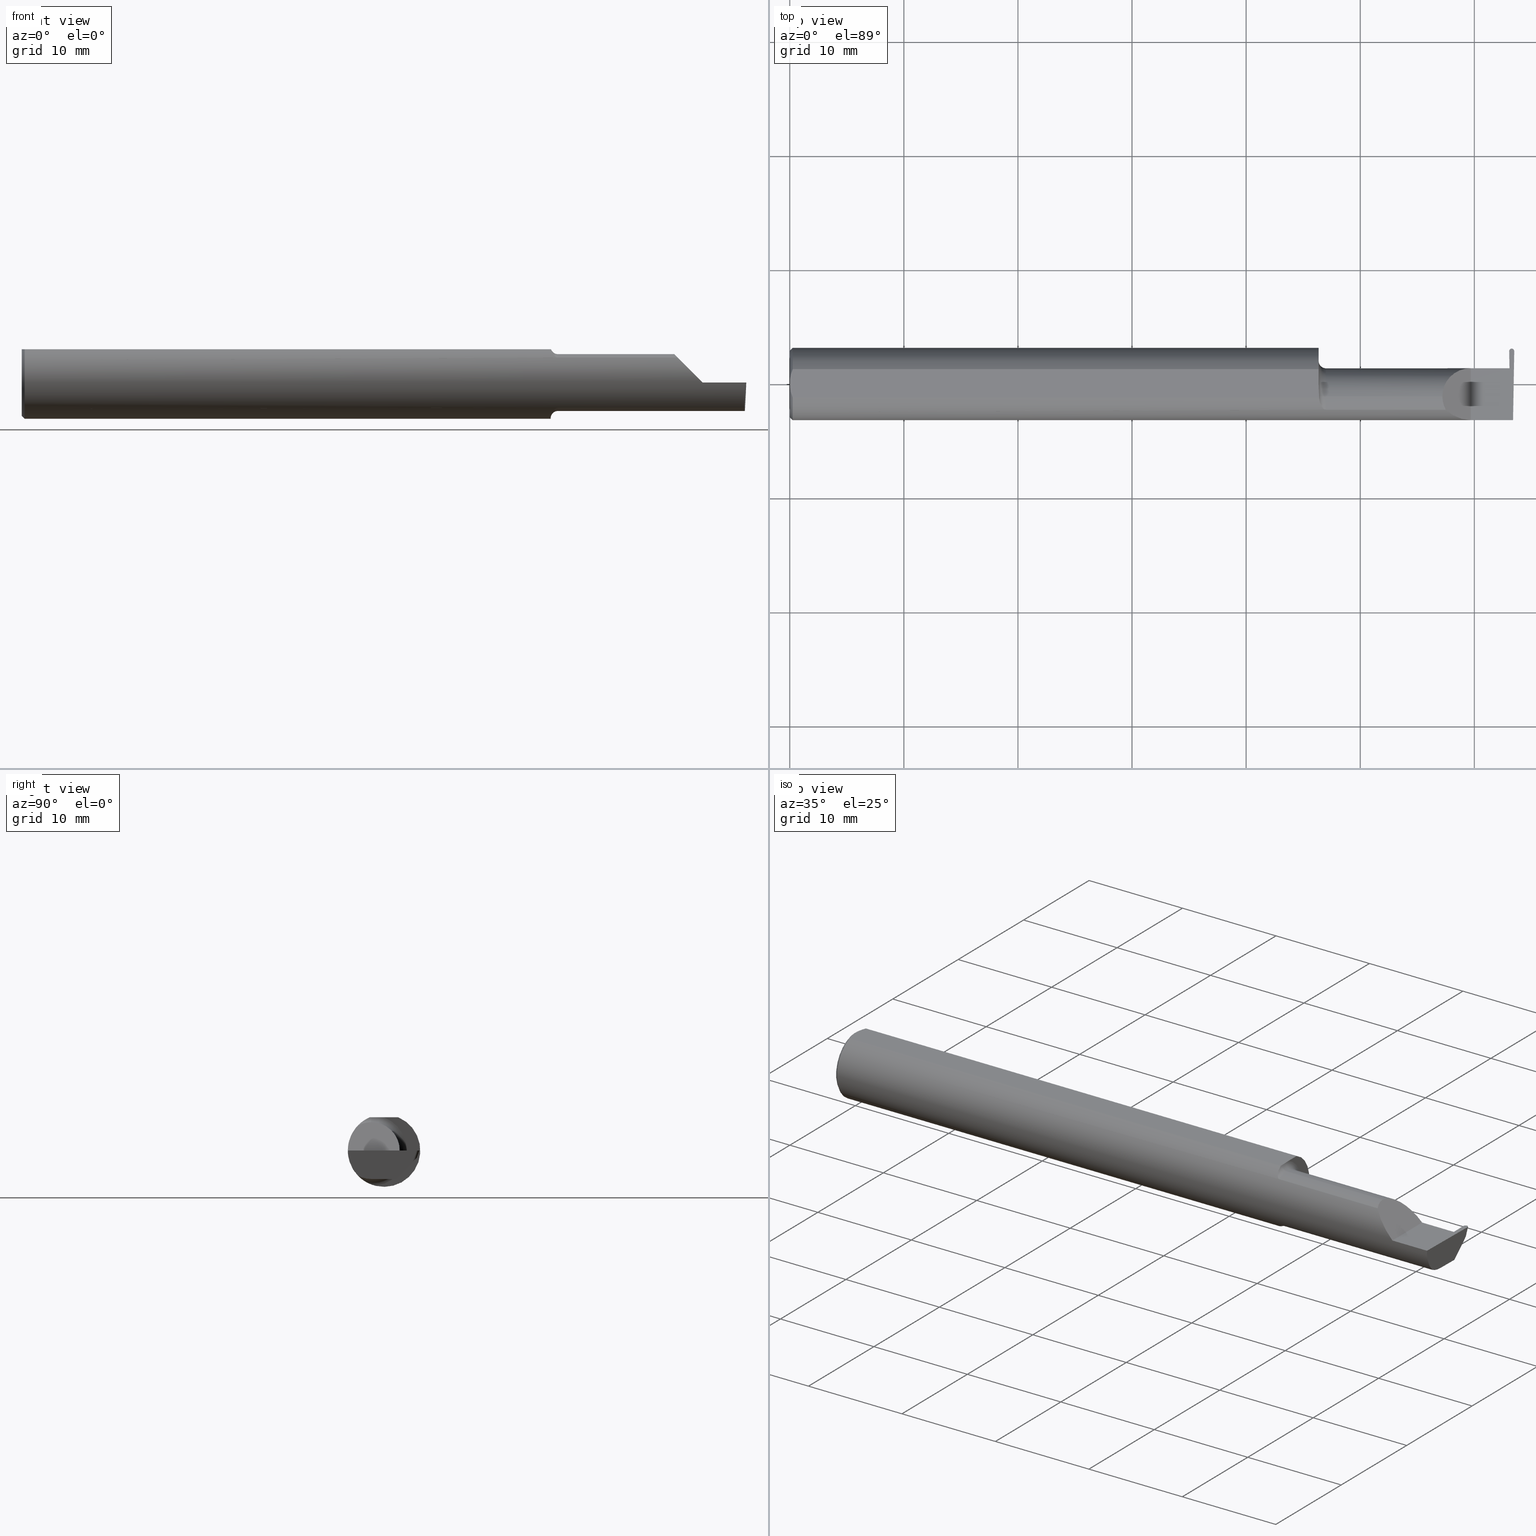
[diagram: canonical four-view strip — front | top / right | iso, engineering-drawing reading convention]
A machine part, canonical four-view strip (front | top / right | iso — engineering-drawing reading convention). The complete STEP part file that produces these views, byte-faithful:
ISO-10303-21;
HEADER;
FILE_DESCRIPTION (( 'STEP AP203' ),
    '1' );
FILE_NAME ('221909-GFR017Q-10.STEP',
    '2024-06-17T18:27:15',
    ( '' ),
    ( '' ),
    'SwSTEP 2.0',
    'SolidWorks 2022',
    '' );
FILE_SCHEMA (( 'CONFIG_CONTROL_DESIGN' ));
ENDSEC;

DATA;
#1 = ORIENTED_EDGE ( 'NONE', *, *, #373, .F. ) ;
#2 = PLANE ( 'NONE',  #301 ) ;
#3 = ORIENTED_EDGE ( 'NONE', *, *, #796, .F. ) ;
#4 = CC_DESIGN_PERSON_AND_ORGANIZATION_ASSIGNMENT ( #80, #455, ( #799 ) ) ;
#5 = DIRECTION ( 'NONE',  ( 0.000000000000000000, -0.7071067811865515695, 0.7071067811865434649 ) ) ;
#6 = DIRECTION ( 'NONE',  ( -1.000000000000000000, -0.000000000000000000, -0.000000000000000000 ) ) ;
#7 = AXIS2_PLACEMENT_3D ( 'NONE', #230, #730, #779 ) ;
#8 = EDGE_LOOP ( 'NONE', ( #658, #38, #324, #721 ) ) ;
#9 = APPROVAL_STATUS ( 'not_yet_approved' ) ;
#10 = DIRECTION ( 'NONE',  ( 1.000000000000000000, 0.000000000000000000, 0.000000000000000000 ) ) ;
#11 = CARTESIAN_POINT ( 'NONE',  ( 2.487625705767810835, 0.08237848374744562163, -0.08819314548155177125 ) ) ;
#12 = DIRECTION ( 'NONE',  ( -1.000000000000000000, 0.000000000000000000, 1.224646799147352468E-16 ) ) ;
#13 = APPROVAL_STATUS ( 'not_yet_approved' ) ;
#14 = CARTESIAN_POINT ( 'NONE',  ( 2.350000000000000089, -0.1250000000000000278, 1.836970198721028825E-17 ) ) ;
#15 = CC_DESIGN_PERSON_AND_ORGANIZATION_ASSIGNMENT ( #193, #777, ( #747 ) ) ;
#16 = ADVANCED_FACE ( 'NONE', ( #442 ), #210, .T. ) ;
#17 = FACE_OUTER_BOUND ( 'NONE', #479, .T. ) ;
#18 = CARTESIAN_POINT ( 'NONE',  ( 2.487115857322145018, -0.04400000000000009459, -0.09800000000000008704 ) ) ;
#19 = ORIENTED_EDGE ( 'NONE', *, *, #351, .T. ) ;
#20 = APPROVAL_ROLE ( '' ) ;
#21 = CARTESIAN_POINT ( 'NONE',  ( 1.824999999999999956, -0.0003651515414569644164, 0.1149999999999999217 ) ) ;
#22 = DIRECTION ( 'NONE',  ( -0.03867711768363056579, 0.3253245514560478280, 0.9448111011136606230 ) ) ;
#23 = EDGE_LOOP ( 'NONE', ( #52, #485, #188, #672, #380 ) ) ;
#24 = VECTOR ( 'NONE', #164, 39.37007874015748143 ) ;
#25 = CARTESIAN_POINT ( 'NONE',  ( 0.01000000000000042348, 0.000000000000000000, 0.000000000000000000 ) ) ;
#26 = ORIENTED_EDGE ( 'NONE', *, *, #247, .F. ) ;
#27 = ADVANCED_FACE ( 'NONE', ( #507 ), #499, .F. ) ;
#28 =( BOUNDED_CURVE ( )  B_SPLINE_CURVE ( 3, ( #49, #229, #670, #232 ),
 .UNSPECIFIED., .F., .F. ) 
 B_SPLINE_CURVE_WITH_KNOTS ( ( 4, 4 ),
 ( 0.3451966888490694552, 1.107331509589587926 ),
 .UNSPECIFIED. ) 
 CURVE ( )  GEOMETRIC_REPRESENTATION_ITEM ( )  RATIONAL_B_SPLINE_CURVE ( ( 1.000000000000000000, 0.9521787881681380572, 0.9521787881681380572, 1.000000000000000000 ) ) 
 REPRESENTATION_ITEM ( '' )  );
#29 = CARTESIAN_POINT ( 'NONE',  ( 1.834055883886139826, -0.07758562614434727500, 0.09811804109501491566 ) ) ;
#30 = VERTEX_POINT ( 'NONE', #136 ) ;
#31 = EDGE_CURVE ( 'NONE', #536, #445, #450, .T. ) ;
#32 = ADVANCED_FACE ( 'NONE', ( #691 ), #497, .F. ) ;
#33 = DIRECTION ( 'NONE',  ( 1.000000000000000000, 0.000000000000000000, 0.000000000000000000 ) ) ;
#34 = VERTEX_POINT ( 'NONE', #697 ) ;
#35 = APPROVAL_PERSON_ORGANIZATION ( #102, #93, #540 ) ;
#36 = CARTESIAN_POINT ( 'NONE',  ( 1.845169762358874088, -0.08954173371311466290, 0.08723520050116025104 ) ) ;
#37 = TOROIDAL_SURFACE ( 'NONE', #213, 0.1230000000000000260, 0.02499999999999993894 ) ;
#38 = ORIENTED_EDGE ( 'NONE', *, *, #572, .F. ) ;
#39 = CARTESIAN_POINT ( 'NONE',  ( 2.495931522036097139, 0.1129002240869102780, -0.02483591319413773132 ) ) ;
#40 = PERSON_AND_ORGANIZATION ( #625, #521 ) ;
#41 = CARTESIAN_POINT ( 'NONE',  ( 2.491241705000000195, 0.1136654917638221379, -0.02407064551722586446 ) ) ;
#42 = ORIENTED_EDGE ( 'NONE', *, *, #126, .T. ) ;
#43 = DIRECTION ( 'NONE',  ( -1.000000000000000000, -0.000000000000000000, -0.000000000000000000 ) ) ;
#44 = DIRECTION ( 'NONE',  ( 1.000000000000000000, 0.000000000000000000, 0.000000000000000000 ) ) ;
#45 = APPROVAL ( #9, 'UNSPECIFIED' ) ;
#46 = ORIENTED_EDGE ( 'NONE', *, *, #664, .T. ) ;
#47 = CARTESIAN_POINT ( 'NONE',  ( 1.824999999999999956, 0.05376127692546274484, -0.006836134426924772231 ) ) ;
#48 = ORIENTED_EDGE ( 'NONE', *, *, #448, .F. ) ;
#49 = CARTESIAN_POINT ( 'NONE',  ( 2.493431982762754462, -0.09042045454545424854, -0.08630840862739529162 ) ) ;
#50 = EDGE_CURVE ( 'NONE', #228, #30, #131, .T. ) ;
#51 = CARTESIAN_POINT ( 'NONE',  ( 1.839282510427138417, -0.08510692115742991837, -0.09158169095606871757 ) ) ;
#52 = ORIENTED_EDGE ( 'NONE', *, *, #514, .F. ) ;
#53 = CARTESIAN_POINT ( 'NONE',  ( 2.495747786320908546, 0.04837003179481734472, -0.08936610548623141748 ) ) ;
#54 = EDGE_CURVE ( 'NONE', #255, #144, #250, .T. ) ;
#55 = CARTESIAN_POINT ( 'NONE',  ( 2.486551887963903251, 0.1129002240869108331, -0.02483591319413716927 ) ) ;
#56 = ORIENTED_EDGE ( 'NONE', *, *, #218, .F. ) ;
#57 = VERTEX_POINT ( 'NONE', #72 ) ;
#58 = CARTESIAN_POINT ( 'NONE',  ( 0.000000000000000000, 3.414809992080329023E-17, 0.1149999999999999217 ) ) ;
#59 = VECTOR ( 'NONE', #192, 39.37007874015748143 ) ;
#60 = CARTESIAN_POINT ( 'NONE',  ( 2.482619091902263264, 0.1593323594802356913, 0.02159622219918822320 ) ) ;
#61 = AXIS2_PLACEMENT_3D ( 'NONE', #267, #711, #328 ) ;
#62 = ORIENTED_EDGE ( 'NONE', *, *, #326, .T. ) ;
#63 = AXIS2_PLACEMENT_3D ( 'NONE', #433, #416, #477 ) ;
#64 = CARTESIAN_POINT ( 'NONE',  ( 2.491352627470454273, 0.1219999999999999835, 0.000000000000000000 ) ) ;
#65 = EDGE_CURVE ( 'NONE', #739, #475, #316, .T. ) ;
#66 = CARTESIAN_POINT ( 'NONE',  ( 2.263691591372603895, -0.09042045454545429017, 0.08630840862739526387 ) ) ;
#67 = EDGE_CURVE ( 'NONE', #94, #160, #480, .T. ) ;
#68 = ORIENTED_EDGE ( 'NONE', *, *, #95, .F. ) ;
#69 = CARTESIAN_POINT ( 'NONE',  ( 2.482486636428674398, 0.1127397658540112840, 0.0001202773598626497302 ) ) ;
#70 =( BOUNDED_CURVE ( )  B_SPLINE_CURVE ( 3, ( #551, #306, #55, #798 ),
 .UNSPECIFIED., .F., .F. ) 
 B_SPLINE_CURVE_WITH_KNOTS ( ( 4, 4 ),
 ( 4.726121454046337433, 6.201952002335866077 ),
 .UNSPECIFIED. ) 
 CURVE ( )  GEOMETRIC_REPRESENTATION_ITEM ( )  RATIONAL_B_SPLINE_CURVE ( ( 1.000000000000000000, 0.8265817722885195895, 0.8265817722885195895, 1.000000000000000000 ) ) 
 REPRESENTATION_ITEM ( '' )  );
#71 = DIRECTION ( 'NONE',  ( 0.000000000000000000, 0.000000000000000000, -1.000000000000000000 ) ) ;
#72 = CARTESIAN_POINT ( 'NONE',  ( 1.849999999999999867, -0.09042045454545424854, -0.08630840862739527775 ) ) ;
#73 = VERTEX_POINT ( 'NONE', #759 ) ;
#74 = DATE_TIME_ROLE ( 'classification_date' ) ;
#75 = DIRECTION ( 'NONE',  ( -1.000000000000000000, -0.000000000000000000, -0.000000000000000000 ) ) ;
#76 = FACE_OUTER_BOUND ( 'NONE', #23, .T. ) ;
#77 = DIRECTION ( 'NONE',  ( -0.9992386149554827179, 0.01744177490282193196, 0.03489949670250104552 ) ) ;
#78 = VECTOR ( 'NONE', #671, 39.37007874015748854 ) ;
#79 = ADVANCED_FACE ( 'NONE', ( #815 ), #379, .F. ) ;
#80 = PERSON_AND_ORGANIZATION ( #625, #521 ) ;
#81 = CARTESIAN_POINT ( 'NONE',  ( 1.824999999999999956, 0.1249999999999999029, 0.000000000000000000 ) ) ;
#82 = CARTESIAN_POINT ( 'NONE',  ( 2.487625705767810835, 0.09065177128393964168, -0.09104186683305189043 ) ) ;
#83 = ORIENTED_EDGE ( 'NONE', *, *, #310, .F. ) ;
#84 = FACE_OUTER_BOUND ( 'NONE', #754, .T. ) ;
#85 = PLANE ( 'NONE',  #669 ) ;
#86 = ORIENTED_EDGE ( 'NONE', *, *, #722, .F. ) ;
#87 = SECURITY_CLASSIFICATION_LEVEL ( 'unclassified' ) ;
#88 = FACE_OUTER_BOUND ( 'NONE', #415, .T. ) ;
#89 = ORIENTED_EDGE ( 'NONE', *, *, #289, .F. ) ;
#90 = AXIS2_PLACEMENT_3D ( 'NONE', #227, #290, #478 ) ;
#91 = PERSON_AND_ORGANIZATION ( #625, #521 ) ;
#92 = CARTESIAN_POINT ( 'NONE',  ( 1.829267307214415439, -0.06631395538221414310, 0.1063681193389229424 ) ) ;
#93 = APPROVAL ( #293, 'UNSPECIFIED' ) ;
#94 = VERTEX_POINT ( 'NONE', #199 ) ;
#95 = EDGE_CURVE ( 'NONE', #30, #73, #683, .T. ) ;
#96 = CARTESIAN_POINT ( 'NONE',  ( 2.482491560144744369, 0.1126983510377570080, 0.000000000000000000 ) ) ;
#97 = ORIENTED_EDGE ( 'NONE', *, *, #67, .F. ) ;
#98 = MECHANICAL_CONTEXT ( 'NONE', #755, 'mechanical' ) ;
#99 = FACE_OUTER_BOUND ( 'NONE', #634, .T. ) ;
#100 = ORIENTED_EDGE ( 'NONE', *, *, #685, .T. ) ;
#101 = CARTESIAN_POINT ( 'NONE',  ( 2.251999999999998892, -0.04400000000000009459, 0.09800000000000008704 ) ) ;
#102 = PERSON_AND_ORGANIZATION ( #625, #521 ) ;
#103 = APPROVAL_PERSON_ORGANIZATION ( #91, #45, #20 ) ;
#104 = CARTESIAN_POINT ( 'NONE',  ( 1.847488493957806455, -0.09042045454585180553, 0.08630840862697891636 ) ) ;
#105 = VERTEX_POINT ( 'NONE', #810 ) ;
#106 = CARTESIAN_POINT ( 'NONE',  ( 1.826311508822838103, -0.04566321385530211496, 0.1149999999999999217 ) ) ;
#107 =( BOUNDED_CURVE ( )  B_SPLINE_CURVE ( 3, ( #278, #472, #605, #41 ),
 .UNSPECIFIED., .F., .F. ) 
 B_SPLINE_CURVE_WITH_KNOTS ( ( 4, 4 ),
 ( 1.570796326794872355, 1.670891485222194328 ),
 .UNSPECIFIED. ) 
 CURVE ( )  GEOMETRIC_REPRESENTATION_ITEM ( )  RATIONAL_B_SPLINE_CURVE ( ( 1.000000000000000000, 0.9991652541966118406, 0.9991652541966118406, 1.000000000000000000 ) ) 
 REPRESENTATION_ITEM ( '' )  );
#108 = DIRECTION ( 'NONE',  ( 0.000000000000000000, 0.000000000000000000, -1.000000000000000000 ) ) ;
#109 = ORIENTED_EDGE ( 'NONE', *, *, #639, .T. ) ;
#110 = DIRECTION ( 'NONE',  ( 1.000000000000000000, 0.000000000000000000, 0.000000000000000000 ) ) ;
#111 = ORIENTED_EDGE ( 'NONE', *, *, #118, .F. ) ;
#112 = EDGE_CURVE ( 'NONE', #703, #304, #453, .T. ) ;
#113 = CARTESIAN_POINT ( 'NONE',  ( 1.849999999999999867, -0.04400000000000009459, 0.000000000000000000 ) ) ;
#114 = AXIS2_PLACEMENT_3D ( 'NONE', #778, #724, #152 ) ;
#115 = CARTESIAN_POINT ( 'NONE',  ( 2.491352627470454273, 0.1219999999999999835, 0.000000000000000000 ) ) ;
#116 = ORIENTED_EDGE ( 'NONE', *, *, #577, .F. ) ;
#118 = EDGE_CURVE ( 'NONE', #94, #332, #254, .T. ) ;
#117 = LINE ( 'NONE', #53, #523 ) ;
#119 = CARTESIAN_POINT ( 'NONE',  ( 1.849999999999999867, -0.04400000000000009459, 0.09800000000000008704 ) ) ;
#120 = CARTESIAN_POINT ( 'NONE',  ( 2.483516143673287768, 0.05399999999999997163, 0.000000000000000000 ) ) ;
#121 = CARTESIAN_POINT ( 'NONE',  ( 1.825730677800976975, -0.04400000000000007377, -0.1169999999999999790 ) ) ;
#122 = CARTESIAN_POINT ( 'NONE',  ( 2.292592929112562405, 0.05399999999999997163, 0.05740707088743676745 ) ) ;
#123 = ORIENTED_EDGE ( 'NONE', *, *, #263, .T. ) ;
#124 =( BOUNDED_CURVE ( )  B_SPLINE_CURVE ( 3, ( #374, #738, #234, #115 ),
 .UNSPECIFIED., .F., .T. ) 
 B_SPLINE_CURVE_WITH_KNOTS ( ( 4, 4 ),
 ( 1.677524580234106333, 3.253450286950926529 ),
 .UNSPECIFIED. ) 
 CURVE ( )  GEOMETRIC_REPRESENTATION_ITEM ( )  RATIONAL_B_SPLINE_CURVE ( ( 1.000000000000000000, 0.8035272986452476340, 0.8035272986452476340, 1.000000000000000000 ) ) 
 REPRESENTATION_ITEM ( '' )  );
#125 = CARTESIAN_POINT ( 'NONE',  ( 2.477329199258169634, 0.05399999999999997163, 0.000000000000000000 ) ) ;
#126 = EDGE_CURVE ( 'NONE', #228, #703, #127, .T. ) ;
#127 = LINE ( 'NONE', #320, #520 ) ;
#128 = EDGE_LOOP ( 'NONE', ( #425, #46, #3, #735 ) ) ;
#129 = VECTOR ( 'NONE', #22, 39.37007874015748143 ) ;
#130 = B_SPLINE_CURVE_WITH_KNOTS ( 'NONE', 3,
 ( #58, #315, #491, #183 ),
 .UNSPECIFIED., .F., .F.,
 ( 4, 4 ),
 ( 0.002331518380383306322, 0.003601362264757408584 ),
 .UNSPECIFIED. ) ;
#131 = LINE ( 'NONE', #60, #547 ) ;
#132 = EDGE_LOOP ( 'NONE', ( #489, #86, #212, #556 ) ) ;
#133 = CALENDAR_DATE ( 2024, 17, 6 ) ;
#134 = DIRECTION ( 'NONE',  ( 0.000000000000000000, 0.000000000000000000, -1.000000000000000000 ) ) ;
#135 = DIRECTION ( 'NONE',  ( 0.000000000000000000, -0.7071067811865434649, -0.7071067811865515695 ) ) ;
#136 = CARTESIAN_POINT ( 'NONE',  ( 2.486599431103166058, 0.05097006188126036036, -0.08676607539978835326 ) ) ;
#137 = VERTEX_POINT ( 'NONE', #66 ) ;
#138 = EDGE_CURVE ( 'NONE', #536, #512, #303, .T. ) ;
#139 = DATE_AND_TIME ( #133, #408 ) ;
#140 = PLANE ( 'NONE',  #245 ) ;
#141 = CYLINDRICAL_SURFACE ( 'NONE', #693, 0.1250000000000000000 ) ;
#142 = FACE_OUTER_BOUND ( 'NONE', #207, .T. ) ;
#143 = CIRCLE ( 'NONE', #196, 0.1250000000000000000 ) ;
#144 = VERTEX_POINT ( 'NONE', #753 ) ;
#145 = EDGE_CURVE ( 'NONE', #764, #601, #458, .T. ) ;
#146 = AXIS2_PLACEMENT_3D ( 'NONE', #236, #673, #614 ) ;
#147 = CARTESIAN_POINT ( 'NONE',  ( 1.849999999999999867, -0.09042045454545420691, 0.08630840862739531938 ) ) ;
#148 = LINE ( 'NONE', #462, #562 ) ;
#149 = ORIENTED_EDGE ( 'NONE', *, *, #237, .F. ) ;
#150 = LINE ( 'NONE', #621, #381 ) ;
#151 = ORIENTED_EDGE ( 'NONE', *, *, #438, .F. ) ;
#152 = DIRECTION ( 'NONE',  ( 1.000000000000000000, 0.000000000000000000, 0.000000000000000000 ) ) ;
#153 = APPROVAL ( #13, 'UNSPECIFIED' ) ;
#154 =( BOUNDED_CURVE ( )  B_SPLINE_CURVE ( 3, ( #202, #502, #629, #319 ),
 .UNSPECIFIED., .F., .T. ) 
 B_SPLINE_CURVE_WITH_KNOTS ( ( 4, 4 ),
 ( 5.789722842198297137, 6.283185307179586232 ),
 .UNSPECIFIED. ) 
 CURVE ( )  GEOMETRIC_REPRESENTATION_ITEM ( )  RATIONAL_B_SPLINE_CURVE ( ( 1.000000000000000000, 0.9798106333074688701, 0.9798106333074688701, 1.000000000000000000 ) ) 
 REPRESENTATION_ITEM ( '' )  );
#155 = ADVANCED_FACE ( 'NONE', ( #142 ), #396, .T. ) ;
#156 = CARTESIAN_POINT ( 'NONE',  ( 1.541666659510484467E-16, -0.008419750986449443114, 0.1149999999999999356 ) ) ;
#157 = ORIENTED_EDGE ( 'NONE', *, *, #664, .F. ) ;
#158 = VECTOR ( 'NONE', #677, 39.37007874015748143 ) ;
#159 = DIRECTION ( 'NONE',  ( -0.03549161113179514354, 0.03487750912278164694, 0.9987611851171729338 ) ) ;
#160 = VERTEX_POINT ( 'NONE', #362 ) ;
#161 =( BOUNDED_CURVE ( )  B_SPLINE_CURVE ( 3, ( #553, #169, #365, #803 ),
 .UNSPECIFIED., .F., .F. ) 
 B_SPLINE_CURVE_WITH_KNOTS ( ( 4, 4 ),
 ( 6.253187659403606879, 6.746650124384895086 ),
 .UNSPECIFIED. ) 
 CURVE ( )  GEOMETRIC_REPRESENTATION_ITEM ( )  RATIONAL_B_SPLINE_CURVE ( ( 1.000000000000000000, 0.9798106333074688701, 0.9798106333074688701, 1.000000000000000000 ) ) 
 REPRESENTATION_ITEM ( '' )  );
#162 = DIRECTION ( 'NONE',  ( -0.03549161113179514354, 0.03487750912278164694, 0.9987611851171729338 ) ) ;
#163 = ORIENTED_EDGE ( 'NONE', *, *, #719, .F. ) ;
#165 = ADVANCED_FACE ( 'NONE', ( #676 ), #665, .F. ) ;
#164 = DIRECTION ( 'NONE',  ( 1.000000000000000000, 0.000000000000000000, 0.000000000000000000 ) ) ;
#166 = APPLICATION_PROTOCOL_DEFINITION ( 'international standard', 'config_control_design', 1994, #690 ) ;
#167 = DIRECTION ( 'NONE',  ( -0.01745240643727751992, 0.9998476951563912696, -0.000000000000000000 ) ) ;
#168 = VERTEX_POINT ( 'NONE', #680 ) ;
#169 = CARTESIAN_POINT ( 'NONE',  ( 2.493412911089820660, -0.07607783494366264498, -0.09402249966297464290 ) ) ;
#170 = CC_DESIGN_DATE_AND_TIME_ASSIGNMENT ( #387, #74, ( #345 ) ) ;
#171 = VECTOR ( 'NONE', #439, 39.37007874015748143 ) ;
#172 = AXIS2_PLACEMENT_3D ( 'NONE', #761, #707, #215 ) ;
#173 = CARTESIAN_POINT ( 'NONE',  ( 1.839945076695471249, -0.08578123596776329740, 0.09094459933485940506 ) ) ;
#174 = ORIENTED_EDGE ( 'NONE', *, *, #580, .F. ) ;
#175 = CARTESIAN_POINT ( 'NONE',  ( 1.826299368641400855, -0.04732662288241863691, 0.1149999999999999356 ) ) ;
#176 = LINE ( 'NONE', #674, #600 ) ;
#177 = ORIENTED_EDGE ( 'NONE', *, *, #31, .F. ) ;
#178 = CARTESIAN_POINT ( 'NONE',  ( 2.477090476183632539, 0.05376127692546273096, -0.006836134426924921417 ) ) ;
#179 = DIRECTION ( 'NONE',  ( 0.000000000000000000, 1.000000000000000000, 0.000000000000000000 ) ) ;
#180 = EDGE_CURVE ( 'NONE', #806, #627, #604, .T. ) ;
#181 = ORIENTED_EDGE ( 'NONE', *, *, #530, .T. ) ;
#182 = VECTOR ( 'NONE', #382, 39.37007874015748143 ) ;
#183 = CARTESIAN_POINT ( 'NONE',  ( 0.01000000000000042348, 0.04898979485566374442, 0.1149999999999999217 ) ) ;
#184 = AXIS2_PLACEMENT_3D ( 'NONE', #11, #758, #494 ) ;
#185 = CARTESIAN_POINT ( 'NONE',  ( 1.824999999999999956, -0.04400000000000009459, 0.000000000000000000 ) ) ;
#186 = CARTESIAN_POINT ( 'NONE',  ( 1.849999999999999867, -0.09042045454545424854, -0.08630840862739527775 ) ) ;
#187 = DIRECTION ( 'NONE',  ( -0.01745240643727527866, -0.9998476951563912696, 0.000000000000000000 ) ) ;
#188 = ORIENTED_EDGE ( 'NONE', *, *, #530, .F. ) ;
#189 = CC_DESIGN_DATE_AND_TIME_ASSIGNMENT ( #327, #526, ( #747 ) ) ;
#190 = EDGE_CURVE ( 'NONE', #34, #304, #161, .T. ) ;
#191 = CARTESIAN_POINT ( 'NONE',  ( 1.847250989814109845, -0.09042045454545424854, -0.08630840862739529162 ) ) ;
#192 = DIRECTION ( 'NONE',  ( 0.7071067811865530128, 0.000000000000000000, -0.7071067811865421326 ) ) ;
#193 = PERSON_AND_ORGANIZATION ( #625, #521 ) ;
#194 = CARTESIAN_POINT ( 'NONE',  ( 1.824999999999999956, -0.0003651515414569644164, 0.1149999999999999217 ) ) ;
#195 = CARTESIAN_POINT ( 'NONE',  ( 1.824999999999999956, -0.04400000000000008765, -0.09800000000000008704 ) ) ;
#196 = AXIS2_PLACEMENT_3D ( 'NONE', #622, #44, #545 ) ;
#197 = LINE ( 'NONE', #69, #233 ) ;
#198 = LINE ( 'NONE', #120, #344 ) ;
#199 = CARTESIAN_POINT ( 'NONE',  ( 0.000000000000000000, 0.000000000000000000, -0.1149999999999997274 ) ) ;
#200 = VERTEX_POINT ( 'NONE', #241 ) ;
#201 = PRODUCT ( '221909-GFR017Q-10', '221909-GFR017Q-10', '', ( #98 ) ) ;
#202 = CARTESIAN_POINT ( 'NONE',  ( 2.263691591372603895, -0.09042045454545429017, 0.08630840862739526387 ) ) ;
#203 = EDGE_CURVE ( 'NONE', #445, #57, #773, .T. ) ;
#204 = CARTESIAN_POINT ( 'NONE',  ( 2.166241705000000017, -0.09042045454545424854, -0.08630840862739529162 ) ) ;
#205 = DIRECTION ( 'NONE',  ( -0.03867711768362981639, -0.3253245514560478280, -0.9448111011136606230 ) ) ;
#206 = ADVANCED_FACE ( 'NONE', ( #607 ), #602, .F. ) ;
#207 = EDGE_LOOP ( 'NONE', ( #177, #768, #398, #688, #517 ) ) ;
#208 = CARTESIAN_POINT ( 'NONE',  ( 3.749399456654637998E-32, -0.1249999999999999861, 3.061616997868380183E-16 ) ) ;
#209 = DIRECTION ( 'NONE',  ( 0.000000000000000000, 0.000000000000000000, -1.000000000000000000 ) ) ;
#210 = CONICAL_SURFACE ( 'NONE', #813, 0.1149999999999997274, 0.7853981633974407295 ) ;
#211 = LOCAL_TIME ( 11, 27, 15.00000000000000000, #728 ) ;
#212 = ORIENTED_EDGE ( 'NONE', *, *, #432, .T. ) ;
#213 = AXIS2_PLACEMENT_3D ( 'NONE', #264, #511, #644 ) ;
#214 = CALENDAR_DATE ( 2024, 17, 6 ) ;
#215 = DIRECTION ( 'NONE',  ( 0.000000000000000000, 0.000000000000000000, 1.000000000000000000 ) ) ;
#216 = DIRECTION ( 'NONE',  ( 1.000000000000000000, 0.000000000000000000, -0.000000000000000000 ) ) ;
#217 = ORIENTED_EDGE ( 'NONE', *, *, #769, .F. ) ;
#218 = EDGE_CURVE ( 'NONE', #239, #703, #117, .T. ) ;
#219 = CARTESIAN_POINT ( 'NONE',  ( 2.487115857322145018, -0.04400000000000009459, -0.09800000000000008704 ) ) ;
#220 = ORIENTED_EDGE ( 'NONE', *, *, #300, .T. ) ;
#221 = CARTESIAN_POINT ( 'NONE',  ( 1.841446811421532770, -0.08721672169474591063, 0.08955973280246655455 ) ) ;
#222 = ORIENTED_EDGE ( 'NONE', *, *, #651, .F. ) ;
#223 = CONICAL_SURFACE ( 'NONE', #771, 0.1149999999999997274, 0.7853981633974407295 ) ;
#224 = DIRECTION ( 'NONE',  ( 0.9992386149554827179, 0.01744177490282417323, 0.03489949670250104552 ) ) ;
#225 = ADVANCED_FACE ( 'NONE', ( #358 ), #727, .T. ) ;
#226 = VERTEX_POINT ( 'NONE', #178 ) ;
#227 = CARTESIAN_POINT ( 'NONE',  ( 1.824999999999999956, -0.04400000000000009459, 0.000000000000000000 ) ) ;
#228 = VERTEX_POINT ( 'NONE', #482 ) ;
#229 = CARTESIAN_POINT ( 'NONE',  ( 2.493862026000344123, -0.1128945894460737925, -0.06276352435079128600 ) ) ;
#230 = CARTESIAN_POINT ( 'NONE',  ( 1.849999999999999867, -0.04400000000000009459, 0.000000000000000000 ) ) ;
#231 = ORIENTED_EDGE ( 'NONE', *, *, #180, .F. ) ;
#232 = CARTESIAN_POINT ( 'NONE',  ( 2.495842809704562626, -0.1250000000000000000, 0.000000000000000000 ) ) ;
#233 = VECTOR ( 'NONE', #338, 39.37007874015748854 ) ;
#234 = CARTESIAN_POINT ( 'NONE',  ( 2.496502983091687611, 0.1220000000000001916, -1.771906798517135649E-17 ) ) ;
#235 = ORIENTED_EDGE ( 'NONE', *, *, #554, .T. ) ;
#236 = CARTESIAN_POINT ( 'NONE',  ( 0.01000000000000042348, 0.000000000000000000, 0.000000000000000000 ) ) ;
#237 = EDGE_CURVE ( 'NONE', #512, #226, #807, .T. ) ;
#238 = CARTESIAN_POINT ( 'NONE',  ( 0.01000000000000042348, -0.04898979485566374442, 0.1149999999999999217 ) ) ;
#239 = VERTEX_POINT ( 'NONE', #244 ) ;
#240 = B_SPLINE_CURVE_WITH_KNOTS ( 'NONE', 3,
 ( #246, #563, #612, #309 ),
 .UNSPECIFIED., .F., .F.,
 ( 4, 4 ),
 ( 0.001645996930207804711, 0.002084692492981586077 ),
 .UNSPECIFIED. ) ;
#241 = CARTESIAN_POINT ( 'NONE',  ( 2.499991849855255133, 0.1126983510377570219, 0.000000000000000000 ) ) ;
#242 = CARTESIAN_POINT ( 'NONE',  ( 1.824999999999999956, -0.04400000000000009459, 0.09800000000000008704 ) ) ;
#243 = ORIENTED_EDGE ( 'NONE', *, *, #577, .T. ) ;
#244 = CARTESIAN_POINT ( 'NONE',  ( 2.498428636891867782, 0.09954970949977200168, -0.03818642778127618459 ) ) ;
#245 = AXIS2_PLACEMENT_3D ( 'NONE', #272, #756, #456 ) ;
#246 = CARTESIAN_POINT ( 'NONE',  ( 1.825730677800976975, -0.04400000000000007377, -0.1169999999999999790 ) ) ;
#247 = EDGE_CURVE ( 'NONE', #668, #806, #736, .T. ) ;
#248 = AXIS2_PLACEMENT_3D ( 'NONE', #249, #624, #12 ) ;
#249 = CARTESIAN_POINT ( 'NONE',  ( 2.500000000000000000, -0.2500000000000000555, 0.000000000000000000 ) ) ;
#250 =( BOUNDED_CURVE ( )  B_SPLINE_CURVE ( 3, ( #633, #331, #122, #265 ),
 .UNSPECIFIED., .F., .F. ) 
 B_SPLINE_CURVE_WITH_KNOTS ( ( 4, 4 ),
 ( 0.000000000000000000, 1.570796326794896114 ),
 .UNSPECIFIED. ) 
 CURVE ( )  GEOMETRIC_REPRESENTATION_ITEM ( )  RATIONAL_B_SPLINE_CURVE ( ( 1.000000000000000000, 0.8047378541243650485, 0.8047378541243650485, 1.000000000000000000 ) ) 
 REPRESENTATION_ITEM ( '' )  );
#251 = ORIENTED_EDGE ( 'NONE', *, *, #615, .T. ) ;
#252 = PRODUCT_DEFINITION_SHAPE ( 'NONE', 'NONE',  #747 ) ;
#253 = CARTESIAN_POINT ( 'NONE',  ( 1.828809610961340759, -0.06315583524588901099, -0.1079992965090798840 ) ) ;
#254 = LINE ( 'NONE', #750, #59 ) ;
#255 = VERTEX_POINT ( 'NONE', #101 ) ;
#256 = CARTESIAN_POINT ( 'NONE',  ( 1.825386034718894157, -0.01491156948752239697, 0.1149999999999999217 ) ) ;
#257 = ORIENTED_EDGE ( 'NONE', *, *, #696, .T. ) ;
#258 = ORIENTED_EDGE ( 'NONE', *, *, #572, .T. ) ;
#259 = PLANE ( 'NONE',  #61 ) ;
#260 = DIRECTION ( 'NONE',  ( -0.01745240643727528213, -0.9998476951563914916, 0.000000000000000000 ) ) ;
#261 = DIRECTION ( 'NONE',  ( 0.000000000000000000, -0.9455185755993166241, 0.3255681544571570885 ) ) ;
#262 = ORIENTED_EDGE ( 'NONE', *, *, #31, .T. ) ;
#263 = EDGE_CURVE ( 'NONE', #429, #239, #581, .T. ) ;
#264 = CARTESIAN_POINT ( 'NONE',  ( 1.849999999999999867, -0.04400000000000009459, 0.000000000000000000 ) ) ;
#265 = CARTESIAN_POINT ( 'NONE',  ( 2.350000000000000089, 0.05399999999999997163, 8.266365894244625705E-17 ) ) ;
#266 = APPROVAL_ROLE ( '' ) ;
#267 = CARTESIAN_POINT ( 'NONE',  ( 2.483516143673287768, 0.05399999999999997163, 0.000000000000000000 ) ) ;
#268 = DIRECTION ( 'NONE',  ( 1.000000000000000000, 0.000000000000000000, 0.000000000000000000 ) ) ;
#269 = CARTESIAN_POINT ( 'NONE',  ( 2.483759070038810801, 0.05376127692546273790, -0.006836134426924772231 ) ) ;
#270 = EDGE_LOOP ( 'NONE', ( #613, #231, #802, #793 ) ) ;
#271 = CALENDAR_DATE ( 2024, 17, 6 ) ;
#272 = CARTESIAN_POINT ( 'NONE',  ( 2.487309710820275743, -2.433500170848689415, -0.02001865397949318184 ) ) ;
#273 = DIRECTION ( 'NONE',  ( 1.000000000000000000, -0.000000000000000000, -0.000000000000000000 ) ) ;
#274 = AXIS2_PLACEMENT_3D ( 'NONE', #582, #709, #216 ) ;
#275 = EDGE_LOOP ( 'NONE', ( #174, #217, #295, #409, #181 ) ) ;
#276 = EDGE_CURVE ( 'NONE', #350, #445, #313, .T. ) ;
#277 =( BOUNDED_CURVE ( )  B_SPLINE_CURVE ( 3, ( #715, #407, #410, #96 ),
 .UNSPECIFIED., .F., .T. ) 
 B_SPLINE_CURVE_WITH_KNOTS ( ( 4, 4 ),
 ( 6.171327673818449711, 7.747253380535275902 ),
 .UNSPECIFIED. ) 
 CURVE ( )  GEOMETRIC_REPRESENTATION_ITEM ( )  RATIONAL_B_SPLINE_CURVE ( ( 1.000000000000000000, 0.8035272986452463018, 0.8035272986452463018, 1.000000000000000000 ) ) 
 REPRESENTATION_ITEM ( '' )  );
#278 = CARTESIAN_POINT ( 'NONE',  ( 2.491241705000000195, 0.1210669986517045327, -0.002709632664605812237 ) ) ;
#279 = ORIENTED_EDGE ( 'NONE', *, *, #65, .T. ) ;
#280 = CC_DESIGN_PERSON_AND_ORGANIZATION_ASSIGNMENT ( #509, #392, ( #345 ) ) ;
#281 = COORDINATED_UNIVERSAL_TIME_OFFSET ( 8, 0, .BEHIND. ) ;
#282 = LINE ( 'NONE', #285, #78 ) ;
#283 = ORIENTED_EDGE ( 'NONE', *, *, #190, .T. ) ;
#284 = EDGE_CURVE ( 'NONE', #34, #105, #28, .T. ) ;
#285 = CARTESIAN_POINT ( 'NONE',  ( 2.499996773571325548, 0.1127397658540113118, 0.0001202773598626410973 ) ) ;
#286 = ORIENTED_EDGE ( 'NONE', *, *, #237, .T. ) ;
#287 = AXIS2_PLACEMENT_3D ( 'NONE', #699, #565, #695 ) ;
#288 = VECTOR ( 'NONE', #311, 39.37007874015748854 ) ;
#289 = EDGE_CURVE ( 'NONE', #649, #720, #426, .T. ) ;
#290 = DIRECTION ( 'NONE',  ( -1.000000000000000000, -0.000000000000000000, -0.000000000000000000 ) ) ;
#291 = ORIENTED_EDGE ( 'NONE', *, *, #65, .F. ) ;
#292 = CARTESIAN_POINT ( 'NONE',  ( 2.498829776079762421, 0.1072077918165299931, -0.03052834546451807865 ) ) ;
#293 = APPROVAL_STATUS ( 'not_yet_approved' ) ;
#294 = CARTESIAN_POINT ( 'NONE',  ( 2.483516143673287768, 0.05399999999999997163, 0.000000000000000000 ) ) ;
#295 = ORIENTED_EDGE ( 'NONE', *, *, #554, .F. ) ;
#296 = DIRECTION ( 'NONE',  ( 0.000000000000000000, 0.000000000000000000, 1.000000000000000000 ) ) ;
#297 = DIRECTION ( 'NONE',  ( -0.7071067811865439090, 0.000000000000000000, -0.7071067811865511255 ) ) ;
#298 = ORIENTED_EDGE ( 'NONE', *, *, #50, .T. ) ;
#300 = EDGE_CURVE ( 'NONE', #332, #720, #483, .T. ) ;
#299 = DIRECTION ( 'NONE',  ( -0.03701368837992363020, -0.7066222423871549863, -0.7066222423871630909 ) ) ;
#301 = AXIS2_PLACEMENT_3D ( 'NONE', #519, #10, #134 ) ;
#302 = CARTESIAN_POINT ( 'NONE',  ( 0.000000000000000000, 0.000000000000000000, 0.000000000000000000 ) ) ;
#303 =( BOUNDED_CURVE ( )  B_SPLINE_CURVE ( 3, ( #18, #763, #706, #269 ),
 .UNSPECIFIED., .F., .F. ) 
 B_SPLINE_CURVE_WITH_KNOTS ( ( 4, 4 ),
 ( 3.176499238629679756, 4.677482395344798149 ),
 .UNSPECIFIED. ) 
 CURVE ( )  GEOMETRIC_REPRESENTATION_ITEM ( )  RATIONAL_B_SPLINE_CURVE ( ( 1.000000000000000000, 0.8209024677461147501, 0.8209024677461147501, 1.000000000000000000 ) ) 
 REPRESENTATION_ITEM ( '' )  );
#304 = VERTEX_POINT ( 'NONE', #762 ) ;
#305 = DIRECTION ( 'NONE',  ( -1.000000000000000000, -0.000000000000000000, -0.000000000000000000 ) ) ;
#306 = CARTESIAN_POINT ( 'NONE',  ( 2.483653633920237080, 0.1072077918165304233, -0.03052834546451767966 ) ) ;
#307 = ORIENTED_EDGE ( 'NONE', *, *, #651, .T. ) ;
#308 = CARTESIAN_POINT ( 'NONE',  ( 1.849999999999999867, -0.04400000000000009459, 0.000000000000000000 ) ) ;
#309 = CARTESIAN_POINT ( 'NONE',  ( 1.824999999999999956, -0.02763636363636359436, -0.1219066503721543404 ) ) ;
#310 = EDGE_CURVE ( 'NONE', #34, #57, #636, .T. ) ;
#311 = DIRECTION ( 'NONE',  ( -0.03701368837992520533, 0.7066222423871548752, 0.7066222423871629799 ) ) ;
#312 = ORIENTED_EDGE ( 'NONE', *, *, #650, .F. ) ;
#313 = CIRCLE ( 'NONE', #496, 0.02499999999999993894 ) ;
#314 = CC_DESIGN_SECURITY_CLASSIFICATION ( #345, ( #799 ) ) ;
#315 = CARTESIAN_POINT ( 'NONE',  ( 1.642610067308552155E-16, 0.01684316307400865464, 0.1149999999999999217 ) ) ;
#316 = CIRCLE ( 'NONE', #708, 0.1230000000000000260 ) ;
#317 = CARTESIAN_POINT ( 'NONE',  ( 0.000000000000000000, 0.000000000000000000, 0.000000000000000000 ) ) ;
#318 = UNCERTAINTY_MEASURE_WITH_UNIT (LENGTH_MEASURE( 1.000000000000000082E-05 ), #393, 'distance_accuracy_value', 'NONE');
#319 = CARTESIAN_POINT ( 'NONE',  ( 2.251999999999998892, -0.04400000000000009459, 0.09800000000000008704 ) ) ;
#320 = CARTESIAN_POINT ( 'NONE',  ( -3.937007874019685528E-05, 0.03973613728104876536, -0.09800000000000008704 ) ) ;
#321 = PLANE ( 'NONE',  #287 ) ;
#322 = CARTESIAN_POINT ( 'NONE',  ( 1.825730677800976975, -0.04400000000000007377, -0.1169999999999999790 ) ) ;
#323 = DIRECTION ( 'NONE',  ( 0.000000000000000000, 0.000000000000000000, -1.000000000000000000 ) ) ;
#324 = ORIENTED_EDGE ( 'NONE', *, *, #50, .F. ) ;
#325 = EDGE_CURVE ( 'NONE', #601, #783, #522, .T. ) ;
#326 = EDGE_CURVE ( 'NONE', #646, #473, #198, .T. ) ;
#327 = DATE_AND_TIME ( #271, #357 ) ;
#328 = DIRECTION ( 'NONE',  ( 0.000000000000000000, -0.03489949670250104552, -0.9993908270190957621 ) ) ;
#329 = VECTOR ( 'NONE', #595, 39.37007874015748143 ) ;
#330 = CARTESIAN_POINT ( 'NONE',  ( 2.482491560144744369, 0.1126983510377570080, 0.000000000000000000 ) ) ;
#331 = CARTESIAN_POINT ( 'NONE',  ( 2.251999999999999336, 0.01340707088743662428, 0.09800000000000008704 ) ) ;
#332 = VERTEX_POINT ( 'NONE', #343 ) ;
#333 = PERSON_AND_ORGANIZATION_ROLE ( 'design_supplier' ) ;
#334 = CARTESIAN_POINT ( 'NONE',  ( 2.263691591372603895, -0.09042045454545429017, 0.08630840862739526387 ) ) ;
#335 = CARTESIAN_POINT ( 'NONE',  ( 2.487404192689059546, 0.1533454373263663517, 0.09103376004873882377 ) ) ;
#336 = DIRECTION ( 'NONE',  ( -1.000000000000000000, -0.000000000000000000, -0.000000000000000000 ) ) ;
#337 = ORIENTED_EDGE ( 'NONE', *, *, #326, .F. ) ;
#338 = DIRECTION ( 'NONE',  ( 0.03867711768363055885, -0.3253245514560477725, -0.9448111011136606230 ) ) ;
#339 = ADVANCED_FACE ( 'NONE', ( #700 ), #452, .T. ) ;
#340 = ADVANCED_FACE ( 'NONE', ( #684 ), #744, .T. ) ;
#341 = CARTESIAN_POINT ( 'NONE',  ( 2.491241705000000195, 0.1136654917638221379, -0.02407064551722586446 ) ) ;
#342 = ORIENTED_EDGE ( 'NONE', *, *, #95, .T. ) ;
#343 = CARTESIAN_POINT ( 'NONE',  ( 0.01000000000000042348, 0.000000000000000000, -0.1250000000000000000 ) ) ;
#344 = VECTOR ( 'NONE', #273, 39.37007874015748143 ) ;
#345 = SECURITY_CLASSIFICATION ( '', '', #87 ) ;
#346 = ORIENTED_EDGE ( 'NONE', *, *, #373, .T. ) ;
#347 = MANIFOLD_SOLID_BREP ( 'Radii', #590 ) ;
#348 = AXIS2_PLACEMENT_3D ( 'NONE', #317, #6, #323 ) ;
#349 = CARTESIAN_POINT ( 'NONE',  ( 2.483516143673287768, 0.05399999999999997163, 0.000000000000000000 ) ) ;
#350 = VERTEX_POINT ( 'NONE', #322 ) ;
#351 = EDGE_CURVE ( 'NONE', #536, #228, #574, .T. ) ;
#352 = CARTESIAN_POINT ( 'NONE',  ( 2.482484743930750248, 0.1130888516759625262, 0.000000000000000000 ) ) ;
#353 = ORIENTED_EDGE ( 'NONE', *, *, #325, .T. ) ;
#354 = EDGE_CURVE ( 'NONE', #304, #536, #150, .T. ) ;
#355 = CARTESIAN_POINT ( 'NONE',  ( 0.000000000000000000, 3.414809992080329023E-17, 0.1149999999999999217 ) ) ;
#356 = ORIENTED_EDGE ( 'NONE', *, *, #247, .T. ) ;
#357 = LOCAL_TIME ( 11, 27, 15.00000000000000000, #281 ) ;
#358 = FACE_OUTER_BOUND ( 'NONE', #275, .T. ) ;
#359 = AXIS2_PLACEMENT_3D ( 'NONE', #25, #705, #71 ) ;
#360 = CARTESIAN_POINT ( 'NONE',  ( 2.482484743930750248, 0.1130888516759625262, 0.000000000000000000 ) ) ;
#361 = ORIENTED_EDGE ( 'NONE', *, *, #284, .T. ) ;
#362 = CARTESIAN_POINT ( 'NONE',  ( 0.000000000000000000, 3.414809992080329023E-17, 0.1149999999999999217 ) ) ;
#363 = PLANE ( 'NONE',  #548 ) ;
#364 = EDGE_LOOP ( 'NONE', ( #385, #353, #638 ) ) ;
#365 = CARTESIAN_POINT ( 'NONE',  ( 2.493549648562251253, -0.06028551311893196735, -0.09800000000000008704 ) ) ;
#366 = CARTESIAN_POINT ( 'NONE',  ( 2.495295532964209695, 0.03973613728104876536, -0.09800000000000008704 ) ) ;
#367 = ORIENTED_EDGE ( 'NONE', *, *, #794, .F. ) ;
#368 = CARTESIAN_POINT ( 'NONE',  ( 2.487404192689059546, 0.1450721497898723455, 0.09388248140023892907 ) ) ;
#369 = VECTOR ( 'NONE', #167, 39.37007874015748854 ) ;
#370 = DIRECTION ( 'NONE',  ( 0.000000000000000000, 0.000000000000000000, -1.000000000000000000 ) ) ;
#371 = ORIENTED_EDGE ( 'NONE', *, *, #685, .F. ) ;
#372 = CARTESIAN_POINT ( 'NONE',  ( 1.826314561435346207, -0.04400000000000009459, 0.1149999999999999217 ) ) ;
#373 = EDGE_CURVE ( 'NONE', #668, #332, #449, .T. ) ;
#374 = CARTESIAN_POINT ( 'NONE',  ( 2.499991849855255133, 0.1126983510377570219, 0.000000000000000000 ) ) ;
#375 = DIRECTION ( 'NONE',  ( 0.000000000000000000, -0.3255681544571570885, -0.9455185755993166241 ) ) ;
#376 = CARTESIAN_POINT ( 'NONE',  ( 2.487116141968339189, -0.04422966076191051782, -0.09800000000000008704 ) ) ;
#377 = ADVANCED_FACE ( 'NONE', ( #88 ), #141, .T. ) ;
#378 = DIRECTION ( 'NONE',  ( -0.7071067811865511255, 0.000000000000000000, 0.7071067811865439090 ) ) ;
#379 = PLANE ( 'NONE',  #643 ) ;
#380 = ORIENTED_EDGE ( 'NONE', *, *, #639, .F. ) ;
#381 = VECTOR ( 'NONE', #515, 39.37007874015748143 ) ;
#382 = DIRECTION ( 'NONE',  ( -1.000000000000000000, -0.000000000000000000, -0.000000000000000000 ) ) ;
#383 = VECTOR ( 'NONE', #486, 39.37007874015748143 ) ;
#384 = DIRECTION ( 'NONE',  ( -1.000000000000000000, -0.000000000000000000, -0.000000000000000000 ) ) ;
#385 = ORIENTED_EDGE ( 'NONE', *, *, #145, .T. ) ;
#386 = ADVANCED_FACE ( 'NONE', ( #506 ), #591, .F. ) ;
#387 = DATE_AND_TIME ( #765, #461 ) ;
#388 = CARTESIAN_POINT ( 'NONE',  ( 2.491130782529545673, 0.1219999999999999835, 0.000000000000000000 ) ) ;
#389 = CARTESIAN_POINT ( 'NONE',  ( -3.937007874019685528E-05, 0.1137361372810480054, -0.02400000000000000050 ) ) ;
#390 = CARTESIAN_POINT ( 'NONE',  ( 0.000000000000000000, 0.000000000000000000, 0.000000000000000000 ) ) ;
#391 = VERTEX_POINT ( 'NONE', #330 ) ;
#392 = PERSON_AND_ORGANIZATION_ROLE ( 'classification_officer' ) ;
#393 =( CONVERSION_BASED_UNIT ( 'INCH', #704 ) LENGTH_UNIT ( ) NAMED_UNIT ( #737 ) );
#394 = VECTOR ( 'NONE', #162, 39.37007874015748854 ) ;
#395 = FACE_OUTER_BOUND ( 'NONE', #726, .T. ) ;
#396 = CYLINDRICAL_SURFACE ( 'NONE', #463, 0.09800000000000008704 ) ;
#397 = AXIS2_PLACEMENT_3D ( 'NONE', #308, #43, #544 ) ;
#398 = ORIENTED_EDGE ( 'NONE', *, *, #190, .F. ) ;
#399 = EDGE_CURVE ( 'NONE', #200, #105, #148, .T. ) ;
#400 = APPROVAL_DATE_TIME ( #139, #153 ) ;
#401 = CARTESIAN_POINT ( 'NONE',  ( 2.317450832343515454, -0.1250000000000000000, 0.03254916765648422500 ) ) ;
#402 = LINE ( 'NONE', #648, #717 ) ;
#403 = EDGE_LOOP ( 'NONE', ( #307, #660, #637 ) ) ;
#404 = CALENDAR_DATE ( 2024, 17, 6 ) ;
#405 = DIRECTION ( 'NONE',  ( -1.000000000000000000, -0.000000000000000000, -0.000000000000000000 ) ) ;
#406 = ORIENTED_EDGE ( 'NONE', *, *, #743, .F. ) ;
#407 = CARTESIAN_POINT ( 'NONE',  ( 2.485980426908312779, 0.1220000000000002333, 1.771906798517136265E-17 ) ) ;
#408 = LOCAL_TIME ( 11, 27, 15.00000000000000000, #654 ) ;
#409 = ORIENTED_EDGE ( 'NONE', *, *, #325, .F. ) ;
#410 = CARTESIAN_POINT ( 'NONE',  ( 2.482396552658129973, 0.1181413263005396674, 1.815796599807465209E-17 ) ) ;
#411 = ADVANCED_FACE ( 'NONE', ( #76 ), #774, .T. ) ;
#412 = ORIENTED_EDGE ( 'NONE', *, *, #126, .F. ) ;
#413 = ADVANCED_FACE ( 'NONE', ( #395 ), #37, .F. ) ;
#414 = CARTESIAN_POINT ( 'NONE',  ( 1.824999999999999956, -0.02763636363636359436, -0.1219066503721543404 ) ) ;
#415 = EDGE_LOOP ( 'NONE', ( #83, #361, #662, #632, #48, #678, #26, #346, #220, #89, #567, #508, #222 ) ) ;
#416 = DIRECTION ( 'NONE',  ( -1.000000000000000000, -0.000000000000000000, -0.000000000000000000 ) ) ;
#417 = CARTESIAN_POINT ( 'NONE',  ( 1.827426556614087927, -0.05801934803183189659, 0.1111534264545055439 ) ) ;
#418 = ORIENTED_EDGE ( 'NONE', *, *, #112, .T. ) ;
#419 = AXIS2_PLACEMENT_3D ( 'NONE', #113, #305, #296 ) ;
#420 = CIRCLE ( 'NONE', #481, 0.1149999999999997274 ) ;
#421 = DIRECTION ( 'NONE',  ( 0.000000000000000000, 0.000000000000000000, 1.000000000000000000 ) ) ;
#422 = VECTOR ( 'NONE', #187, 39.37007874015748854 ) ;
#423 = ADVANCED_FACE ( 'NONE', ( #17 ), #85, .T. ) ;
#424 = FACE_OUTER_BOUND ( 'NONE', #787, .T. ) ;
#425 = ORIENTED_EDGE ( 'NONE', *, *, #809, .T. ) ;
#426 = LINE ( 'NONE', #791, #797 ) ;
#427 = CC_DESIGN_PERSON_AND_ORGANIZATION_ASSIGNMENT ( #518, #333, ( #799 ) ) ;
#428 = CARTESIAN_POINT ( 'NONE',  ( 1.824999999999999956, 0.1250000000000000278, 0.1149999999999999217 ) ) ;
#429 = VERTEX_POINT ( 'NONE', #341 ) ;
#430 = CARTESIAN_POINT ( 'NONE',  ( 2.477170050541811719, 0.05384085128364181350, -0.004557422951283275452 ) ) ;
#431 = ORIENTED_EDGE ( 'NONE', *, *, #623, .F. ) ;
#432 = EDGE_CURVE ( 'NONE', #168, #144, #402, .T. ) ;
#433 = CARTESIAN_POINT ( 'NONE',  ( 1.849999999999999867, -0.04400000000000009459, 0.000000000000000000 ) ) ;
#434 = CIRCLE ( 'NONE', #7, 0.09800000000000008704 ) ;
#435 = DATE_AND_TIME ( #404, #211 ) ;
#436 = CARTESIAN_POINT ( 'NONE',  ( 1.844768270659623566, -0.08937924045984925459, -0.08740614068309883467 ) ) ;
#437 = DIRECTION ( 'NONE',  ( 0.000000000000000000, 0.000000000000000000, 1.000000000000000000 ) ) ;
#438 = EDGE_CURVE ( 'NONE', #668, #160, #525, .T. ) ;
#440 = EDGE_CURVE ( 'NONE', #473, #391, #597, .T. ) ;
#439 = DIRECTION ( 'NONE',  ( -1.000000000000000000, -0.000000000000000000, -0.000000000000000000 ) ) ;
#441 = CARTESIAN_POINT ( 'NONE',  ( 1.840850385411617163, -0.08673035960621004736, -0.09003514189954220370 ) ) ;
#442 = FACE_OUTER_BOUND ( 'NONE', #542, .T. ) ;
#443 = CARTESIAN_POINT ( 'NONE',  ( 1.826893175330810415, -0.05388688644707111813, -0.1129101901561700982 ) ) ;
#444 = CARTESIAN_POINT ( 'NONE',  ( -3.937007874019685528E-05, 0.1219999999999999835, 0.000000000000000000 ) ) ;
#445 = VERTEX_POINT ( 'NONE', #718 ) ;
#446 = AXIS2_PLACEMENT_3D ( 'NONE', #389, #5, #135 ) ;
#447 = CARTESIAN_POINT ( 'NONE',  ( 1.824999999999999734, -0.007643795319155052316, 0.1149999999999999356 ) ) ;
#448 = EDGE_CURVE ( 'NONE', #790, #137, #725, .T. ) ;
#449 = CIRCLE ( 'NONE', #359, 0.1250000000000000000 ) ;
#450 = LINE ( 'NONE', #195, #626 ) ;
#451 = DIRECTION ( 'NONE',  ( -1.000000000000000000, -0.000000000000000000, -0.000000000000000000 ) ) ;
#452 = PLANE ( 'NONE',  #274 ) ;
#453 = LINE ( 'NONE', #746, #422 ) ;
#454 = ORIENTED_EDGE ( 'NONE', *, *, #399, .F. ) ;
#455 = PERSON_AND_ORGANIZATION_ROLE ( 'creator' ) ;
#456 = DIRECTION ( 'NONE',  ( 0.03547001781079549970, 0.000000000000000000, -0.9993707409347653003 ) ) ;
#457 = DIRECTION ( 'NONE',  ( 0.000000000000000000, 0.000000000000000000, 1.000000000000000000 ) ) ;
#458 = LINE ( 'NONE', #82, #770 ) ;
#459 = APPROVAL_DATE_TIME ( #585, #45 ) ;
#460 = CARTESIAN_POINT ( 'NONE',  ( 1.826314561435346207, -0.04400000000000009459, 0.1149999999999999217 ) ) ;
#461 = LOCAL_TIME ( 11, 27, 15.00000000000000000, #641 ) ;
#462 = CARTESIAN_POINT ( 'NONE',  ( 2.499998666069249253, 0.1130888516759625262, 0.000000000000000000 ) ) ;
#463 = AXIS2_PLACEMENT_3D ( 'NONE', #645, #336, #583 ) ;
#464 = ORIENTED_EDGE ( 'NONE', *, *, #432, .F. ) ;
#465 = FACE_OUTER_BOUND ( 'NONE', #710, .T. ) ;
#466 = CARTESIAN_POINT ( 'NONE',  ( 1.824999999999999956, -0.04400000000000009459, 0.000000000000000000 ) ) ;
#467 = ORIENTED_EDGE ( 'NONE', *, *, #399, .T. ) ;
#468 = FACE_OUTER_BOUND ( 'NONE', #128, .T. ) ;
#469 = ORIENTED_EDGE ( 'NONE', *, *, #719, .T. ) ;
#470 = EDGE_CURVE ( 'NONE', #806, #790, #543, .T. ) ;
#471 = ORIENTED_EDGE ( 'NONE', *, *, #218, .T. ) ;
#472 = CARTESIAN_POINT ( 'NONE',  ( 2.491241705000000639, 0.1186085052529338296, -0.009849615936009976924 ) ) ;
#473 = VERTEX_POINT ( 'NONE', #528 ) ;
#474 = CARTESIAN_POINT ( 'NONE',  ( 0.01000000000000042348, -0.04898979485566374442, 0.1149999999999999217 ) ) ;
#475 = VERTEX_POINT ( 'NONE', #414 ) ;
#476 = CC_DESIGN_PERSON_AND_ORGANIZATION_ASSIGNMENT ( #40, #788, ( #201 ) ) ;
#477 = DIRECTION ( 'NONE',  ( 0.000000000000000000, 0.000000000000000000, 1.000000000000000000 ) ) ;
#478 = DIRECTION ( 'NONE',  ( 0.000000000000000000, 0.000000000000000000, 1.000000000000000000 ) ) ;
#479 = EDGE_LOOP ( 'NONE', ( #257, #116, #279 ) ) ;
#480 = CIRCLE ( 'NONE', #348, 0.1149999999999997274 ) ;
#481 = AXIS2_PLACEMENT_3D ( 'NONE', #302, #75, #513 ) ;
#482 = CARTESIAN_POINT ( 'NONE',  ( 2.487012073059427397, 0.03973613728104877924, -0.09800000000000008704 ) ) ;
#483 = CIRCLE ( 'NONE', #146, 0.1250000000000000000 ) ;
#484 = CARTESIAN_POINT ( 'NONE',  ( 1.835190181894029049, -0.07991573988362392356, -0.09622915934337333832 ) ) ;
#485 = ORIENTED_EDGE ( 'NONE', *, *, #263, .F. ) ;
#486 = DIRECTION ( 'NONE',  ( -1.000000000000000000, -0.000000000000000000, -0.000000000000000000 ) ) ;
#487 = LINE ( 'NONE', #814, #158 ) ;
#488 = ADVANCED_FACE ( 'NONE', ( #468 ), #786, .T. ) ;
#489 = ORIENTED_EDGE ( 'NONE', *, *, #809, .F. ) ;
#490 = CARTESIAN_POINT ( 'NONE',  ( 1.826290282237992502, -0.04815824739941139410, 0.1149999999999999356 ) ) ;
#491 = CARTESIAN_POINT ( 'NONE',  ( 0.003880275146595849479, 0.03337499979622342988, 0.1149999999999999217 ) ) ;
#492 = EDGE_CURVE ( 'NONE', #606, #445, #434, .T. ) ;
#493 = EDGE_LOOP ( 'NONE', ( #56, #529, #467, #588, #283, #713 ) ) ;
#494 = DIRECTION ( 'NONE',  ( 0.000000000000000000, 0.9455185755993170682, -0.3255681544571562558 ) ) ;
#495 = CC_DESIGN_APPROVAL ( #93, ( #747 ) ) ;
#496 = AXIS2_PLACEMENT_3D ( 'NONE', #539, #795, #421 ) ;
#497 = PLANE ( 'NONE',  #655 ) ;
#498 = CARTESIAN_POINT ( 'NONE',  ( 2.477090476183632539, 0.05376127692546273096, -0.006836134426924921417 ) ) ;
#499 = PLANE ( 'NONE',  #248 ) ;
#500 = ADVANCED_FACE ( 'NONE', ( #424 ), #223, .T. ) ;
#501 = DESIGN_CONTEXT ( 'detailed design', #690, 'design' ) ;
#502 = CARTESIAN_POINT ( 'NONE',  ( 2.255977500337024377, -0.07607783494366271437, 0.09402249966297458739 ) ) ;
#503 = CARTESIAN_POINT ( 'NONE',  ( 2.499998666069249253, 0.1130888516759625262, 0.000000000000000000 ) ) ;
#504 = CIRCLE ( 'NONE', #656, 0.02499999999999993894 ) ;
#505 =( NAMED_UNIT ( * ) PLANE_ANGLE_UNIT ( ) SI_UNIT ( $, .RADIAN. ) );
#506 = FACE_OUTER_BOUND ( 'NONE', #653, .T. ) ;
#507 = FACE_OUTER_BOUND ( 'NONE', #560, .T. ) ;
#508 = ORIENTED_EDGE ( 'NONE', *, *, #594, .F. ) ;
#509 = PERSON_AND_ORGANIZATION ( #625, #521 ) ;
#510 = CARTESIAN_POINT ( 'NONE',  ( 2.287236475649208511, -0.1128945894460738203, 0.06276352435079116110 ) ) ;
#511 = DIRECTION ( 'NONE',  ( -1.000000000000000000, -0.000000000000000000, -0.000000000000000000 ) ) ;
#512 = VERTEX_POINT ( 'NONE', #661 ) ;
#513 = DIRECTION ( 'NONE',  ( 0.000000000000000000, 0.000000000000000000, -1.000000000000000000 ) ) ;
#514 = EDGE_CURVE ( 'NONE', #239, #200, #282, .T. ) ;
#515 = DIRECTION ( 'NONE',  ( -1.000000000000000000, -0.000000000000000000, -0.000000000000000000 ) ) ;
#516 = ADVANCED_FACE ( 'NONE', ( #99 ), #363, .F. ) ;
#517 = ORIENTED_EDGE ( 'NONE', *, *, #203, .F. ) ;
#518 = PERSON_AND_ORGANIZATION ( #625, #521 ) ;
#519 = CARTESIAN_POINT ( 'NONE',  ( 0.000000000000000000, 0.000000000000000000, 0.000000000000000000 ) ) ;
#520 = VECTOR ( 'NONE', #631, 39.37007874015748143 ) ;
#521 = ORGANIZATION ( 'UNSPECIFIED', 'UNSPECIFIED', '' ) ;
#522 = LINE ( 'NONE', #335, #129 ) ;
#523 = VECTOR ( 'NONE', #299, 39.37007874015748143 ) ;
#524 = ORIENTED_EDGE ( 'NONE', *, *, #492, .T. ) ;
#525 = B_SPLINE_CURVE_WITH_KNOTS ( 'NONE', 3,
 ( #474, #666, #659, #608, #156, #355 ),
 .UNSPECIFIED., .F., .F.,
 ( 4, 2, 4 ),
 ( 0.001061950514642623312, 0.001696734447512964709, 0.002331518380383306322 ),
 .UNSPECIFIED. ) ;
#526 = DATE_TIME_ROLE ( 'creation_date' ) ;
#527 = APPLICATION_PROTOCOL_DEFINITION ( 'international standard', 'config_control_design', 1994, #755 ) ;
#528 = CARTESIAN_POINT ( 'NONE',  ( 2.483516143673287768, 0.05399999999999997163, 0.000000000000000000 ) ) ;
#529 = ORIENTED_EDGE ( 'NONE', *, *, #514, .T. ) ;
#530 = EDGE_CURVE ( 'NONE', #601, #429, #107, .T. ) ;
#531 = SHAPE_DEFINITION_REPRESENTATION ( #252, #775 ) ;
#532 = CARTESIAN_POINT ( 'NONE',  ( 1.835996102358148363, -0.08116363444194787946, 0.09515685373904846089 ) ) ;
#533 = ORIENTED_EDGE ( 'NONE', *, *, #769, .T. ) ;
#534 = CARTESIAN_POINT ( 'NONE',  ( 1.826278290187167919, -0.04898979485482684443, 0.1149999999999999217 ) ) ;
#535 = VECTOR ( 'NONE', #159, 39.37007874015748854 ) ;
#536 = VERTEX_POINT ( 'NONE', #219 ) ;
#537 = CARTESIAN_POINT ( 'NONE',  ( 0.000000000000000000, 0.000000000000000000, 0.000000000000000000 ) ) ;
#538 = ORIENTED_EDGE ( 'NONE', *, *, #138, .F. ) ;
#539 = CARTESIAN_POINT ( 'NONE',  ( 1.849999999999999867, -0.04400000000000008071, -0.1230000000000000260 ) ) ;
#540 = APPROVAL_ROLE ( '' ) ;
#541 = LINE ( 'NONE', #349, #394 ) ;
#542 = EDGE_LOOP ( 'NONE', ( #111, #163, #100, #598 ) ) ;
#543 = B_SPLINE_CURVE_WITH_KNOTS ( 'NONE', 3,
 ( #534, #417, #92, #29, #532, #173, #221, #36, #104, #792 ),
 .UNSPECIFIED., .F., .F.,
 ( 4, 2, 2, 2, 4 ),
 ( 5.067393807887071825E-07, 0.0007430328995835643480, 0.001114295979684952476, 0.001299927519735646431, 0.001485559059786340603 ),
 .UNSPECIFIED. ) ;
#544 = DIRECTION ( 'NONE',  ( 0.000000000000000000, 0.000000000000000000, 1.000000000000000000 ) ) ;
#545 = DIRECTION ( 'NONE',  ( 0.000000000000000000, 0.000000000000000000, -1.000000000000000000 ) ) ;
#546 = ORIENTED_EDGE ( 'NONE', *, *, #550, .T. ) ;
#547 = VECTOR ( 'NONE', #575, 39.37007874015748854 ) ;
#548 = AXIS2_PLACEMENT_3D ( 'NONE', #360, #224, #782 ) ;
#549 = DIRECTION ( 'NONE',  ( 0.000000000000000000, -0.9455185755993170682, 0.3255681544571562558 ) ) ;
#550 = EDGE_CURVE ( 'NONE', #512, #473, #657, .T. ) ;
#551 = CARTESIAN_POINT ( 'NONE',  ( 2.484054773108133052, 0.09954970949977197392, -0.03818642778127619153 ) ) ;
#552 = ORIENTED_EDGE ( 'NONE', *, *, #54, .T. ) ;
#553 = CARTESIAN_POINT ( 'NONE',  ( 2.493431982762754462, -0.09042045454545424854, -0.08630840862739529162 ) ) ;
#554 = EDGE_CURVE ( 'NONE', #783, #391, #277, .T. ) ;
#555 = CARTESIAN_POINT ( 'NONE',  ( 1.833239374200247518, -0.07597265459956457911, -0.09939534496909264993 ) ) ;
#556 = ORIENTED_EDGE ( 'NONE', *, *, #54, .F. ) ;
#557 = DIRECTION ( 'NONE',  ( -0.03867711768363056579, 0.3253245514560478280, 0.9448111011136607340 ) ) ;
#558 = CARTESIAN_POINT ( 'NONE',  ( 2.491241705000000195, 0.1210669986517045327, -0.002709632664605812237 ) ) ;
#559 = DIRECTION ( 'NONE',  ( -1.000000000000000000, -0.000000000000000000, -0.000000000000000000 ) ) ;
#560 = EDGE_LOOP ( 'NONE', ( #312, #235, #596, #337, #812, #464, #406, #454, #109 ) ) ;
#561 = LOCAL_TIME ( 11, 27, 15.00000000000000000, #578 ) ;
#562 = VECTOR ( 'NONE', #260, 39.37007874015747433 ) ;
#563 = CARTESIAN_POINT ( 'NONE',  ( 1.825234743326751952, -0.03866586649758528560, -0.1190059989239850846 ) ) ;
#564 = ORIENTED_EDGE ( 'NONE', *, *, #180, .T. ) ;
#565 = DIRECTION ( 'NONE',  ( 0.000000000000000000, 0.000000000000000000, 1.000000000000000000 ) ) ;
#566 = DIRECTION ( 'NONE',  ( 0.03490480639812536257, 0.000000000000000000, 0.9993906415863165194 ) ) ;
#567 = ORIENTED_EDGE ( 'NONE', *, *, #696, .F. ) ;
#568 = DIRECTION ( 'NONE',  ( -1.000000000000000000, -0.000000000000000000, -0.000000000000000000 ) ) ;
#569 = ORIENTED_EDGE ( 'NONE', *, *, #289, .T. ) ;
#570 = ORIENTED_EDGE ( 'NONE', *, *, #702, .T. ) ;
#571 = B_SPLINE_CURVE_WITH_KNOTS ( 'NONE', 3,
 ( #460, #635, #586, #256, #447, #21 ),
 .UNSPECIFIED., .F., .F.,
 ( 4, 2, 4 ),
 ( 0.009445492519198586678, 0.009997058688341185773, 0.01054862485748378487 ),
 .UNSPECIFIED. ) ;
#572 = EDGE_CURVE ( 'NONE', #30, #512, #541, .T. ) ;
#573 = PERSON_AND_ORGANIZATION ( #625, #521 ) ;
#574 = LINE ( 'NONE', #376, #729 ) ;
#575 = DIRECTION ( 'NONE',  ( -0.02596452850600450626, 0.7068683906002054540, 0.7068683906002135586 ) ) ;
#576 = ORIENTED_EDGE ( 'NONE', *, *, #440, .T. ) ;
#577 = EDGE_CURVE ( 'NONE', #739, #649, #789, .T. ) ;
#578 = COORDINATED_UNIVERSAL_TIME_OFFSET ( 8, 0, .BEHIND. ) ;
#579 = CARTESIAN_POINT ( 'NONE',  ( 1.826278290187167919, -0.04898979485482684443, 0.1149999999999999217 ) ) ;
#580 = EDGE_CURVE ( 'NONE', #73, #429, #70, .T. ) ;
#581 =( BOUNDED_CURVE ( )  B_SPLINE_CURVE ( 3, ( #603, #39, #292, #611 ),
 .UNSPECIFIED., .F., .F. ) 
 B_SPLINE_CURVE_WITH_KNOTS ( ( 4, 4 ),
 ( 3.222825958433578108, 4.698656506723038362 ),
 .UNSPECIFIED. ) 
 CURVE ( )  GEOMETRIC_REPRESENTATION_ITEM ( )  RATIONAL_B_SPLINE_CURVE ( ( 1.000000000000000000, 0.8265817722885350216, 0.8265817722885350216, 1.000000000000000000 ) ) 
 REPRESENTATION_ITEM ( '' )  );
#582 = CARTESIAN_POINT ( 'NONE',  ( 2.753179778023443269, 0.1250000000000000278, 0.1149999999999999217 ) ) ;
#583 = DIRECTION ( 'NONE',  ( 0.000000000000000000, 0.000000000000000000, 1.000000000000000000 ) ) ;
#584 = ORIENTED_EDGE ( 'NONE', *, *, #550, .F. ) ;
#585 = DATE_AND_TIME ( #214, #561 ) ;
#586 = CARTESIAN_POINT ( 'NONE',  ( 1.826049928736321659, -0.02945016372790504669, 0.1149999999999999356 ) ) ;
#587 = DIRECTION ( 'NONE',  ( -0.000000000000000000, 1.000000000000000000, -0.000000000000000000 ) ) ;
#588 = ORIENTED_EDGE ( 'NONE', *, *, #284, .F. ) ;
#589 =( NAMED_UNIT ( * ) SI_UNIT ( $, .STERADIAN. ) SOLID_ANGLE_UNIT ( ) );
#590 = CLOSED_SHELL ( 'NONE', ( #165, #413, #340, #488, #500, #805, #377, #610, #27, #339, #16, #785, #155, #206, #423, #781, #79, #386, #516, #32, #757, #411, #225 ) ) ;
#591 = PLANE ( 'NONE',  #446 ) ;
#592 = AXIS2_PLACEMENT_3D ( 'NONE', #466, #405, #457 ) ;
#593 = EDGE_LOOP ( 'NONE', ( #538, #262, #780, #157, #552, #570, #431, #149 ) ) ;
#594 = EDGE_CURVE ( 'NONE', #350, #475, #240, .T. ) ;
#595 = DIRECTION ( 'NONE',  ( 1.000000000000000000, 0.000000000000000000, 0.000000000000000000 ) ) ;
#596 = ORIENTED_EDGE ( 'NONE', *, *, #440, .F. ) ;
#597 = LINE ( 'NONE', #352, #369 ) ;
#598 = ORIENTED_EDGE ( 'NONE', *, *, #300, .F. ) ;
#599 = CARTESIAN_POINT ( 'NONE',  ( 2.166241705000000017, -0.09042045454545424854, 0.08630840862739529162 ) ) ;
#600 = VECTOR ( 'NONE', #110, 39.37007874015748143 ) ;
#601 = VERTEX_POINT ( 'NONE', #558 ) ;
#602 = TOROIDAL_SURFACE ( 'NONE', #63, 0.1230000000000000260, 0.02499999999999993894 ) ;
#603 = CARTESIAN_POINT ( 'NONE',  ( 2.491241705000000195, 0.1136654917638221379, -0.02407064551722586446 ) ) ;
#604 = B_SPLINE_CURVE_WITH_KNOTS ( 'NONE', 3,
 ( #618, #490, #175, #106, #663, #372 ),
 .UNSPECIFIED., .F., .F.,
 ( 4, 2, 4 ),
 ( 0.009319464280412446261, 0.009382478399805516470, 0.009445492519198586678 ),
 .UNSPECIFIED. ) ;
#605 = CARTESIAN_POINT ( 'NONE',  ( 2.491241705000000639, 0.1161392751108076271, -0.01697590219109517892 ) ) ;
#606 = VERTEX_POINT ( 'NONE', #119 ) ;
#607 = FACE_OUTER_BOUND ( 'NONE', #270, .T. ) ;
#608 = CARTESIAN_POINT ( 'NONE',  ( 0.0009328476361608245343, -0.01672844127736827086, 0.1149999999999999217 ) ) ;
#609 = ORIENTED_EDGE ( 'NONE', *, *, #118, .T. ) ;
#610 = ADVANCED_FACE ( 'NONE', ( #740 ), #689, .F. ) ;
#611 = CARTESIAN_POINT ( 'NONE',  ( 2.498428636891867782, 0.09954970949977200168, -0.03818642778127618459 ) ) ;
#612 = CARTESIAN_POINT ( 'NONE',  ( 1.824999999999999956, -0.03321131449419131160, -0.1206428032506770692 ) ) ;
#613 = ORIENTED_EDGE ( 'NONE', *, *, #615, .F. ) ;
#615 = EDGE_CURVE ( 'NONE', #627, #606, #504, .T. ) ;
#614 = DIRECTION ( 'NONE',  ( 0.000000000000000000, 0.000000000000000000, -1.000000000000000000 ) ) ;
#616 = CARTESIAN_POINT ( 'NONE',  ( 2.477329199258169634, 0.05399999999999997163, 0.000000000000000000 ) ) ;
#617 = EDGE_LOOP ( 'NONE', ( #356, #564, #731, #243, #569, #371, #151 ) ) ;
#618 = CARTESIAN_POINT ( 'NONE',  ( 1.826278290187167919, -0.04898979485482684443, 0.1149999999999999217 ) ) ;
#619 = CARTESIAN_POINT ( 'NONE',  ( 2.350000000000000089, -0.2500000000000000555, 1.836970198721028825E-17 ) ) ;
#620 = CARTESIAN_POINT ( 'NONE',  ( 2.479909448124860472, 0.1786874275525325573, 0.04095129027148529388 ) ) ;
#621 = CARTESIAN_POINT ( 'NONE',  ( 2.672413070268786939, -0.04400000000000009459, -0.09800000000000008704 ) ) ;
#622 = CARTESIAN_POINT ( 'NONE',  ( 1.824999999999999956, 0.000000000000000000, 0.000000000000000000 ) ) ;
#623 = EDGE_CURVE ( 'NONE', #226, #646, #692, .T. ) ;
#624 = DIRECTION ( 'NONE',  ( -1.224646799147352468E-16, 0.000000000000000000, -1.000000000000000000 ) ) ;
#625 = PERSON ( 'UNSPECIFIED', 'UNSPECIFIED', 'UNSPECIFIED', ('UNSPECIFIED'), ('UNSPECIFIED'), ('UNSPECIFIED') ) ;
#626 = VECTOR ( 'NONE', #559, 39.37007874015748143 ) ;
#627 = VERTEX_POINT ( 'NONE', #749 ) ;
#628 =( GEOMETRIC_REPRESENTATION_CONTEXT ( 3 ) GLOBAL_UNCERTAINTY_ASSIGNED_CONTEXT ( ( #318 ) ) GLOBAL_UNIT_ASSIGNED_CONTEXT ( ( #393, #505, #589 ) ) REPRESENTATION_CONTEXT ( 'NONE', 'WORKASPACE' ) );
#629 = CARTESIAN_POINT ( 'NONE',  ( 2.251999999999998892, -0.06028551311893201592, 0.09800000000000008704 ) ) ;
#630 =( BOUNDED_CURVE ( )  B_SPLINE_CURVE ( 3, ( #14, #401, #510, #334 ),
 .UNSPECIFIED., .F., .F. ) 
 B_SPLINE_CURVE_WITH_KNOTS ( ( 4, 4 ),
 ( 4.712388980384689674, 5.474523801125207534 ),
 .UNSPECIFIED. ) 
 CURVE ( )  GEOMETRIC_REPRESENTATION_ITEM ( )  RATIONAL_B_SPLINE_CURVE ( ( 1.000000000000000000, 0.9521787881681380572, 0.9521787881681380572, 1.000000000000000000 ) ) 
 REPRESENTATION_ITEM ( '' )  );
#631 = DIRECTION ( 'NONE',  ( 1.000000000000000000, -0.000000000000000000, -0.000000000000000000 ) ) ;
#632 = ORIENTED_EDGE ( 'NONE', *, *, #722, .T. ) ;
#633 = CARTESIAN_POINT ( 'NONE',  ( 2.251999999999998892, -0.04400000000000009459, 0.09800000000000008704 ) ) ;
#634 = EDGE_LOOP ( 'NONE', ( #576, #533, #68, #258, #546 ) ) ;
#635 = CARTESIAN_POINT ( 'NONE',  ( 1.826314561435346207, -0.03672135622230204843, 0.1149999999999999356 ) ) ;
#636 = LINE ( 'NONE', #204, #171 ) ;
#637 = ORIENTED_EDGE ( 'NONE', *, *, #203, .T. ) ;
#638 = ORIENTED_EDGE ( 'NONE', *, *, #650, .T. ) ;
#639 = EDGE_CURVE ( 'NONE', #200, #764, #124, .T. ) ;
#640 = VECTOR ( 'NONE', #179, 39.37007874015748143 ) ;
#641 = COORDINATED_UNIVERSAL_TIME_OFFSET ( 8, 0, .BEHIND. ) ;
#642 = CARTESIAN_POINT ( 'NONE',  ( 0.01000000000000042348, 0.04898979485566374442, 0.1149999999999999217 ) ) ;
#643 = AXIS2_PLACEMENT_3D ( 'NONE', #444, #261, #375 ) ;
#644 = DIRECTION ( 'NONE',  ( 0.000000000000000000, 0.000000000000000000, 1.000000000000000000 ) ) ;
#645 = CARTESIAN_POINT ( 'NONE',  ( 1.824999999999999956, -0.04400000000000009459, 0.000000000000000000 ) ) ;
#646 = VERTEX_POINT ( 'NONE', #125 ) ;
#647 = LINE ( 'NONE', #208, #784 ) ;
#648 = CARTESIAN_POINT ( 'NONE',  ( 2.350000000000000089, -0.2500000000000000555, 1.836970198721028825E-17 ) ) ;
#649 = VERTEX_POINT ( 'NONE', #745 ) ;
#650 = EDGE_CURVE ( 'NONE', #783, #764, #487, .T. ) ;
#651 = EDGE_CURVE ( 'NONE', #57, #350, #681, .T. ) ;
#652 = DIRECTION ( 'NONE',  ( 0.000000000000000000, 0.000000000000000000, 1.000000000000000000 ) ) ;
#653 = EDGE_LOOP ( 'NONE', ( #342, #751, #123, #471, #412, #298 ) ) ;
#654 = COORDINATED_UNIVERSAL_TIME_OFFSET ( 8, 0, .BEHIND. ) ;
#655 = AXIS2_PLACEMENT_3D ( 'NONE', #503, #77, #566 ) ;
#656 = AXIS2_PLACEMENT_3D ( 'NONE', #808, #804, #370 ) ;
#657 = LINE ( 'NONE', #294, #535 ) ;
#658 = ORIENTED_EDGE ( 'NONE', *, *, #138, .T. ) ;
#659 = CARTESIAN_POINT ( 'NONE',  ( 0.004414142251465132810, -0.03315347577847933824, 0.1149999999999999356 ) ) ;
#660 = ORIENTED_EDGE ( 'NONE', *, *, #276, .T. ) ;
#661 = CARTESIAN_POINT ( 'NONE',  ( 2.483759070038810801, 0.05376127692546273790, -0.006836134426924772231 ) ) ;
#662 = ORIENTED_EDGE ( 'NONE', *, *, #743, .T. ) ;
#663 = CARTESIAN_POINT ( 'NONE',  ( 1.826314561435346429, -0.04483155449642704099, 0.1149999999999999356 ) ) ;
#664 = EDGE_CURVE ( 'NONE', #255, #606, #734, .T. ) ;
#665 = TOROIDAL_SURFACE ( 'NONE', #397, 0.1230000000000000260, 0.02499999999999993894 ) ;
#666 = CARTESIAN_POINT ( 'NONE',  ( 0.006956794985978487743, -0.04122489957750442163, 0.1149999999999999356 ) ) ;
#667 = CC_DESIGN_APPROVAL ( #45, ( #345 ) ) ;
#668 = VERTEX_POINT ( 'NONE', #238 ) ;
#669 = AXIS2_PLACEMENT_3D ( 'NONE', #81, #268, #209 ) ;
#670 = CARTESIAN_POINT ( 'NONE',  ( 2.494705994581233099, -0.1250000000000000278, -0.03254916765648428745 ) ) ;
#671 = DIRECTION ( 'NONE',  ( 0.03867711768362983027, 0.3253245514560478280, 0.9448111011136606230 ) ) ;
#672 = ORIENTED_EDGE ( 'NONE', *, *, #145, .F. ) ;
#673 = DIRECTION ( 'NONE',  ( 1.000000000000000000, 0.000000000000000000, 0.000000000000000000 ) ) ;
#674 = CARTESIAN_POINT ( 'NONE',  ( 1.824999999999999956, 0.05399999999999997163, 8.266365894244625705E-17 ) ) ;
#675 = ORIENTED_EDGE ( 'NONE', *, *, #623, .T. ) ;
#676 = FACE_OUTER_BOUND ( 'NONE', #403, .T. ) ;
#677 = DIRECTION ( 'NONE',  ( 1.000000000000000000, -0.000000000000000000, -0.000000000000000000 ) ) ;
#678 = ORIENTED_EDGE ( 'NONE', *, *, #470, .F. ) ;
#679 = AXIS2_PLACEMENT_3D ( 'NONE', #619, #297, #378 ) ;
#680 = CARTESIAN_POINT ( 'NONE',  ( 2.350000000000000089, -0.1250000000000000278, 1.836970198721028825E-17 ) ) ;
#681 = B_SPLINE_CURVE_WITH_KNOTS ( 'NONE', 3,
 ( #186, #191, #436, #441, #51, #484, #555, #686, #253, #443, #801, #121 ),
 .UNSPECIFIED., .F., .F.,
 ( 4, 2, 2, 2, 2, 4 ),
 ( 1.964009442425878487E-07, 0.0002059214671021842116, 0.0004116465332601258308, 0.0008230966655760187187, 0.001234546797891911607, 0.001645996930207804711 ),
 .UNSPECIFIED. ) ;
#682 = CARTESIAN_POINT ( 'NONE',  ( 2.477249624899990899, 0.05392042564182088910, -0.002278711475641637726 ) ) ;
#683 = LINE ( 'NONE', #620, #288 ) ;
#684 = FACE_OUTER_BOUND ( 'NONE', #593, .T. ) ;
#685 = EDGE_CURVE ( 'NONE', #160, #720, #130, .T. ) ;
#686 = CARTESIAN_POINT ( 'NONE',  ( 1.830023755285531184, -0.06757875350159905925, -0.1052824340695055760 ) ) ;
#687 = DIRECTION ( 'NONE',  ( 1.000000000000000000, 0.000000000000000000, 0.000000000000000000 ) ) ;
#688 = ORIENTED_EDGE ( 'NONE', *, *, #310, .T. ) ;
#689 = PLANE ( 'NONE',  #679 ) ;
#690 = APPLICATION_CONTEXT ( 'configuration controlled 3d designs of mechanical parts and assemblies' ) ;
#691 = FACE_OUTER_BOUND ( 'NONE', #493, .T. ) ;
#692 = B_SPLINE_CURVE_WITH_KNOTS ( 'NONE', 3,
 ( #498, #430, #682, #616 ),
 .UNSPECIFIED., .F., .F.,
 ( 4, 4 ),
 ( 0.000000000000000000, 1.000000000000000000 ),
 .UNSPECIFIED. ) ;
#693 = AXIS2_PLACEMENT_3D ( 'NONE', #767, #568, #652 ) ;
#694 = APPROVAL_PERSON_ORGANIZATION ( #573, #153, #266 ) ;
#695 = DIRECTION ( 'NONE',  ( 1.000000000000000000, 0.000000000000000000, -0.000000000000000000 ) ) ;
#696 = EDGE_CURVE ( 'NONE', #475, #649, #143, .T. ) ;
#697 = CARTESIAN_POINT ( 'NONE',  ( 2.493431982762754462, -0.09042045454545424854, -0.08630840862739529162 ) ) ;
#698 = ORIENTED_EDGE ( 'NONE', *, *, #354, .T. ) ;
#699 = CARTESIAN_POINT ( 'NONE',  ( 2.672413070268786939, -0.04400000000000009459, -0.09800000000000008704 ) ) ;
#700 = FACE_OUTER_BOUND ( 'NONE', #617, .T. ) ;
#701 = DIRECTION ( 'NONE',  ( 0.000000000000000000, 0.000000000000000000, -1.000000000000000000 ) ) ;
#702 = EDGE_CURVE ( 'NONE', #144, #646, #176, .T. ) ;
#703 = VERTEX_POINT ( 'NONE', #366 ) ;
#704 = LENGTH_MEASURE_WITH_UNIT ( LENGTH_MEASURE( 0.02539999999999999897 ), #752 );
#705 = DIRECTION ( 'NONE',  ( 1.000000000000000000, 0.000000000000000000, 0.000000000000000000 ) ) ;
#706 = CARTESIAN_POINT ( 'NONE',  ( 2.485685536098598103, 0.04997501107658530728, -0.06098225869090301288 ) ) ;
#707 = DIRECTION ( 'NONE',  ( -1.000000000000000000, -0.000000000000000000, -0.000000000000000000 ) ) ;
#708 = AXIS2_PLACEMENT_3D ( 'NONE', #185, #384, #437 ) ;
#709 = DIRECTION ( 'NONE',  ( 0.000000000000000000, 0.000000000000000000, 1.000000000000000000 ) ) ;
#710 = EDGE_LOOP ( 'NONE', ( #584, #286, #675, #62 ) ) ;
#711 = DIRECTION ( 'NONE',  ( 0.000000000000000000, -0.9993908270190957621, 0.03489949670250104552 ) ) ;
#712 = DIRECTION ( 'NONE',  ( -0.001239419280281409477, 0.9999992319196288060, 0.000000000000000000 ) ) ;
#713 = ORIENTED_EDGE ( 'NONE', *, *, #112, .F. ) ;
#714 = PRODUCT_RELATED_PRODUCT_CATEGORY ( 'detail', '', ( #201 ) ) ;
#715 = CARTESIAN_POINT ( 'NONE',  ( 2.491130782529545673, 0.1219999999999999835, 0.000000000000000000 ) ) ;
#716 = ORIENTED_EDGE ( 'NONE', *, *, #276, .F. ) ;
#717 = VECTOR ( 'NONE', #587, 39.37007874015748143 ) ;
#718 = CARTESIAN_POINT ( 'NONE',  ( 1.849999999999999867, -0.04400000000000008765, -0.09800000000000008704 ) ) ;
#719 = EDGE_CURVE ( 'NONE', #160, #94, #420, .T. ) ;
#720 = VERTEX_POINT ( 'NONE', #642 ) ;
#721 = ORIENTED_EDGE ( 'NONE', *, *, #351, .F. ) ;
#722 = EDGE_CURVE ( 'NONE', #168, #137, #630, .T. ) ;
#723 = CARTESIAN_POINT ( 'NONE',  ( 0.000000000000000000, -0.04898979485566374442, 0.1149999999999999217 ) ) ;
#724 = DIRECTION ( 'NONE',  ( 0.000000000000000000, 0.000000000000000000, 1.000000000000000000 ) ) ;
#725 = LINE ( 'NONE', #599, #329 ) ;
#726 = EDGE_LOOP ( 'NONE', ( #716, #776, #291, #367, #251, #524 ) ) ;
#727 = CYLINDRICAL_SURFACE ( 'NONE', #732, 0.008749999999999999098 ) ;
#728 = COORDINATED_UNIVERSAL_TIME_OFFSET ( 8, 0, .BEHIND. ) ;
#729 = VECTOR ( 'NONE', #712, 39.37007874015748854 ) ;
#730 = DIRECTION ( 'NONE',  ( -1.000000000000000000, -0.000000000000000000, -0.000000000000000000 ) ) ;
#731 = ORIENTED_EDGE ( 'NONE', *, *, #794, .T. ) ;
#732 = AXIS2_PLACEMENT_3D ( 'NONE', #368, #557, #549 ) ;
#733 = DIRECTION ( 'NONE',  ( -1.000000000000000000, -0.000000000000000000, -0.000000000000000000 ) ) ;
#734 = LINE ( 'NONE', #242, #182 ) ;
#735 = ORIENTED_EDGE ( 'NONE', *, *, #448, .T. ) ;
#736 = LINE ( 'NONE', #723, #24 ) ;
#737 = DIMENSIONAL_EXPONENTS ( 1.000000000000000000, 0.000000000000000000, 0.000000000000000000, 0.000000000000000000, 0.000000000000000000, 0.000000000000000000, 0.000000000000000000 ) ;
#738 = CARTESIAN_POINT ( 'NONE',  ( 2.500086857341869528, 0.1181413263005396674, -1.815796599807464593E-17 ) ) ;
#739 = VERTEX_POINT ( 'NONE', #194 ) ;
#740 = FACE_OUTER_BOUND ( 'NONE', #132, .T. ) ;
#741 = ORIENTED_EDGE ( 'NONE', *, *, #67, .T. ) ;
#742 = CIRCLE ( 'NONE', #172, 0.09800000000000008704 ) ;
#743 = EDGE_CURVE ( 'NONE', #105, #168, #647, .T. ) ;
#744 = CYLINDRICAL_SURFACE ( 'NONE', #592, 0.09800000000000008704 ) ;
#745 = CARTESIAN_POINT ( 'NONE',  ( 1.824999999999999956, 0.04898979485566374442, 0.1149999999999999217 ) ) ;
#746 = CARTESIAN_POINT ( 'NONE',  ( 2.493888306049834025, -0.04088383864926501549, -0.09800000000000008704 ) ) ;
#747 = PRODUCT_DEFINITION ( 'UNKNOWN', '', #799, #501 ) ;
#748 = EDGE_LOOP ( 'NONE', ( #698, #19, #42, #418 ) ) ;
#749 = CARTESIAN_POINT ( 'NONE',  ( 1.826314561435346207, -0.04400000000000009459, 0.1149999999999999217 ) ) ;
#750 = CARTESIAN_POINT ( 'NONE',  ( 0.000000000000000000, 0.000000000000000000, -0.1149999999999997274 ) ) ;
#751 = ORIENTED_EDGE ( 'NONE', *, *, #580, .T. ) ;
#752 =( LENGTH_UNIT ( ) NAMED_UNIT ( * ) SI_UNIT ( $, .METRE. ) );
#753 = CARTESIAN_POINT ( 'NONE',  ( 2.350000000000000089, 0.05399999999999997163, 8.266365894244625705E-17 ) ) ;
#754 = EDGE_LOOP ( 'NONE', ( #469, #741 ) ) ;
#755 = APPLICATION_CONTEXT ( 'configuration controlled 3d designs of mechanical parts and assemblies' ) ;
#756 = DIRECTION ( 'NONE',  ( 0.9993699743034455407, 0.001238639365660611094, 0.03546999060124707975 ) ) ;
#757 = ADVANCED_FACE ( 'NONE', ( #766 ), #140, .F. ) ;
#758 = DIRECTION ( 'NONE',  ( -0.03867711768362983027, -0.3253245514560478835, -0.9448111011136608450 ) ) ;
#759 = CARTESIAN_POINT ( 'NONE',  ( 2.484054773108133052, 0.09954970949977197392, -0.03818642778127619153 ) ) ;
#760 = APPROVAL_DATE_TIME ( #435, #93 ) ;
#761 = CARTESIAN_POINT ( 'NONE',  ( 1.849999999999999867, -0.04400000000000009459, 0.000000000000000000 ) ) ;
#762 = CARTESIAN_POINT ( 'NONE',  ( 2.493833913251130241, -0.04400000000000009459, -0.09800000000000008704 ) ) ;
#763 = CARTESIAN_POINT ( 'NONE',  ( 2.487048583644937416, 0.01027834358092124568, -0.09800000000000012867 ) ) ;
#764 = VERTEX_POINT ( 'NONE', #64 ) ;
#765 = CALENDAR_DATE ( 2024, 17, 6 ) ;
#766 = FACE_OUTER_BOUND ( 'NONE', #8, .T. ) ;
#767 = CARTESIAN_POINT ( 'NONE',  ( 0.000000000000000000, 0.000000000000000000, 0.000000000000000000 ) ) ;
#768 = ORIENTED_EDGE ( 'NONE', *, *, #354, .F. ) ;
#769 = EDGE_CURVE ( 'NONE', #391, #73, #197, .T. ) ;
#770 = VECTOR ( 'NONE', #205, 39.37007874015748854 ) ;
#771 = AXIS2_PLACEMENT_3D ( 'NONE', #537, #33, #108 ) ;
#772 = FACE_OUTER_BOUND ( 'NONE', #748, .T. ) ;
#773 = CIRCLE ( 'NONE', #419, 0.09800000000000008704 ) ;
#774 = CYLINDRICAL_SURFACE ( 'NONE', #184, 0.008749999999999999098 ) ;
#775 = ADVANCED_BREP_SHAPE_REPRESENTATION ( '221909-GFR017Q-10', ( #347, #114 ), #628 ) ;
#776 = ORIENTED_EDGE ( 'NONE', *, *, #594, .T. ) ;
#777 = PERSON_AND_ORGANIZATION_ROLE ( 'creator' ) ;
#778 = CARTESIAN_POINT ( 'NONE',  ( 0.000000000000000000, 0.000000000000000000, 0.000000000000000000 ) ) ;
#779 = DIRECTION ( 'NONE',  ( 0.000000000000000000, 0.000000000000000000, 1.000000000000000000 ) ) ;
#780 = ORIENTED_EDGE ( 'NONE', *, *, #492, .F. ) ;
#781 = ADVANCED_FACE ( 'NONE', ( #772 ), #321, .F. ) ;
#782 = DIRECTION ( 'NONE',  ( 0.03490480639812536257, 0.000000000000000000, -0.9993906415863165194 ) ) ;
#783 = VERTEX_POINT ( 'NONE', #388 ) ;
#784 = VECTOR ( 'NONE', #451, 39.37007874015748143 ) ;
#785 = ADVANCED_FACE ( 'NONE', ( #84 ), #2, .F. ) ;
#786 = CYLINDRICAL_SURFACE ( 'NONE', #90, 0.09800000000000008704 ) ;
#787 = EDGE_LOOP ( 'NONE', ( #97, #609, #1, #800 ) ) ;
#788 = PERSON_AND_ORGANIZATION_ROLE ( 'design_owner' ) ;
#789 = LINE ( 'NONE', #428, #640 ) ;
#790 = VERTEX_POINT ( 'NONE', #147 ) ;
#791 = CARTESIAN_POINT ( 'NONE',  ( 0.000000000000000000, 0.04898979485566374442, 0.1149999999999999217 ) ) ;
#792 = CARTESIAN_POINT ( 'NONE',  ( 1.849999999999999867, -0.09042045454545420691, 0.08630840862739531938 ) ) ;
#793 = ORIENTED_EDGE ( 'NONE', *, *, #796, .T. ) ;
#794 = EDGE_CURVE ( 'NONE', #627, #739, #571, .T. ) ;
#796 = EDGE_CURVE ( 'NONE', #790, #606, #742, .T. ) ;
#795 = DIRECTION ( 'NONE',  ( -0.000000000000000000, 1.000000000000000000, 1.224646799147353207E-16 ) ) ;
#797 = VECTOR ( 'NONE', #733, 39.37007874015748143 ) ;
#798 = CARTESIAN_POINT ( 'NONE',  ( 2.491241705000000195, 0.1136654917638221379, -0.02407064551722586446 ) ) ;
#799 = PRODUCT_DEFINITION_FORMATION_WITH_SPECIFIED_SOURCE ( 'ANY', '', #201, .NOT_KNOWN. ) ;
#800 = ORIENTED_EDGE ( 'NONE', *, *, #438, .T. ) ;
#801 = CARTESIAN_POINT ( 'NONE',  ( 1.826195811990450002, -0.04900285419228610218, -0.1151185847481999980 ) ) ;
#802 = ORIENTED_EDGE ( 'NONE', *, *, #470, .T. ) ;
#803 = CARTESIAN_POINT ( 'NONE',  ( 2.493833913251130241, -0.04400000000000009459, -0.09800000000000008704 ) ) ;
#804 = DIRECTION ( 'NONE',  ( 0.000000000000000000, -1.000000000000000000, 0.000000000000000000 ) ) ;
#805 = ADVANCED_FACE ( 'NONE', ( #465 ), #259, .F. ) ;
#806 = VERTEX_POINT ( 'NONE', #579 ) ;
#807 = LINE ( 'NONE', #47, #383 ) ;
#808 = CARTESIAN_POINT ( 'NONE',  ( 1.849999999999999867, -0.04400000000000009459, 0.1230000000000000260 ) ) ;
#809 = EDGE_CURVE ( 'NONE', #137, #255, #154, .T. ) ;
#810 = CARTESIAN_POINT ( 'NONE',  ( 2.495842809704562626, -0.1250000000000000000, 0.000000000000000000 ) ) ;
#811 = CC_DESIGN_APPROVAL ( #153, ( #799 ) ) ;
#812 = ORIENTED_EDGE ( 'NONE', *, *, #702, .F. ) ;
#813 = AXIS2_PLACEMENT_3D ( 'NONE', #390, #687, #701 ) ;
#814 = CARTESIAN_POINT ( 'NONE',  ( -3.937007874019685528E-05, 0.1219999999999999835, 0.000000000000000000 ) ) ;
#815 = FACE_OUTER_BOUND ( 'NONE', #364, .T. ) ;
ENDSEC;
END-ISO-10303-21;
